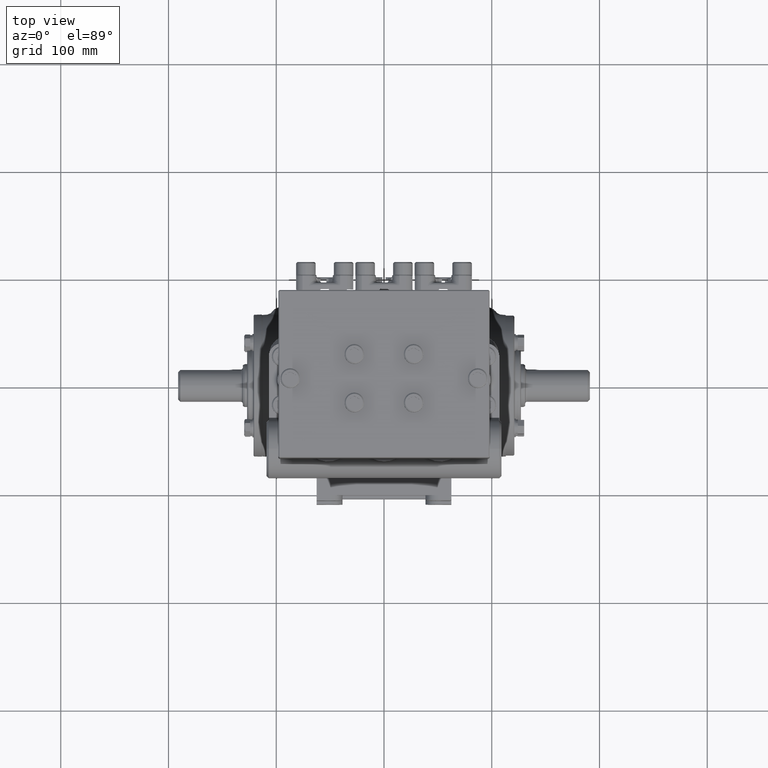
[diagram: clean part render]
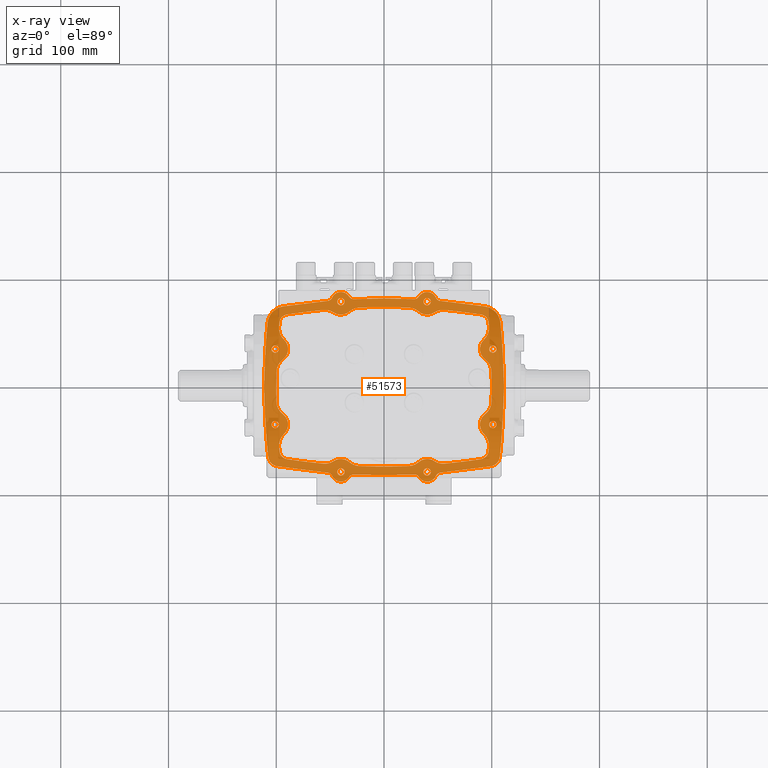
[diagram: x-ray — body ghosted, one internal face saturated and labeled with its STEP entity id]
A machine part, top view, then the same camera in x-ray: the body is ghosted and one INTERNAL B-rep face — a face not visible from any outside direction — is saturated and labeled: STEP entity #51573.
In plain terms, the highlighted planar face has unit normal (0, 0, 1).
Its self-contained STEP definition (entity closure, byte-faithful):
#39 = CARTESIAN_POINT ( 'NONE',  ( 1.949939764655396424, -3.184155259815480754, -2.677165354330709679 ) ) ;
#84 = CIRCLE ( 'NONE', #15133, 0.3543307086614170820 ) ;
#99 = VERTEX_POINT ( 'NONE', #21356 ) ;
#149 = CARTESIAN_POINT ( 'NONE',  ( -3.275618926153061050, 3.000403615539101843, -2.677165354330710123 ) ) ;
#530 = DIRECTION ( 'NONE',  ( 1.000000000000000000, 0.000000000000000000, 0.000000000000000000 ) ) ;
#532 = ORIENTED_EDGE ( 'NONE', *, *, #69856, .T. ) ;
#684 = CARTESIAN_POINT ( 'NONE',  ( -2.061199718059960606, -3.138240205909955449, -2.677165354330706570 ) ) ;
#733 = VERTEX_POINT ( 'NONE', #75861 ) ;
#770 = ORIENTED_EDGE ( 'NONE', *, *, #5018, .F. ) ;
#818 = CARTESIAN_POINT ( 'NONE',  ( -0.8799574373186446197, -2.305785043569838155, -2.677165354330064417 ) ) ;
#879 = CIRCLE ( 'NONE', #91393, 0.1338582677165354451 ) ;
#1065 = CARTESIAN_POINT ( 'NONE',  ( 1.252395038335502697, 3.268040506734201323, -2.677165354330709679 ) ) ;
#1186 = EDGE_CURVE ( 'NONE', #10175, #34361, #23771, .T. ) ;
#1201 = CARTESIAN_POINT ( 'NONE',  ( -3.139645971332099883, -3.022356532156543985, -2.677165354330707903 ) ) ;
#1470 = CARTESIAN_POINT ( 'NONE',  ( 3.987251433200213580, -2.882622144544663811, -2.677165354330708347 ) ) ;
#1498 = CARTESIAN_POINT ( 'NONE',  ( -4.253569493975589033, 2.343245490963142164, -2.677165354330708791 ) ) ;
#1554 = DIRECTION ( 'NONE',  ( 0.000000000000000000, 0.000000000000000000, 1.000000000000000000 ) ) ;
#1569 = CARTESIAN_POINT ( 'NONE',  ( 3.976377952755905998, 1.377952755905512028, -2.677165354330708791 ) ) ;
#1673 = ORIENTED_EDGE ( 'NONE', *, *, #26220, .T. ) ;
#1782 = DIRECTION ( 'NONE',  ( 1.000000000000000000, 0.000000000000000000, 0.000000000000000000 ) ) ;
#1805 = CARTESIAN_POINT ( 'NONE',  ( 0.7314346345182247688, 3.219864016129887485, -2.677165354330708791 ) ) ;
#1826 = EDGE_CURVE ( 'NONE', #17443, #81971, #83958, .T. ) ;
#1967 = EDGE_CURVE ( 'NONE', #62587, #733, #85631, .T. ) ;
#1973 = CARTESIAN_POINT ( 'NONE',  ( 4.043926867460768015, -2.852401266874054819, -2.677165354330709679 ) ) ;
#2081 = AXIS2_PLACEMENT_3D ( 'NONE', #57963, #82107, #66358 ) ;
#2140 = CARTESIAN_POINT ( 'NONE',  ( -1.574803149606299302, -3.110236220472441637, -2.677165354330708791 ) ) ;
#2227 = EDGE_CURVE ( 'NONE', #78092, #39135, #67435, .T. ) ;
#2387 = AXIS2_PLACEMENT_3D ( 'NONE', #69623, #29229, #93227 ) ;
#2491 = CARTESIAN_POINT ( 'NONE',  ( 4.159951258686383824, -2.744451162685177970, -2.677165354330708791 ) ) ;
#2572 = CARTESIAN_POINT ( 'NONE',  ( -2.212172391077217082, 2.808165080513630230, -2.677165354330708791 ) ) ;
#2751 = EDGE_CURVE ( 'NONE', #77628, #15138, #3625, .T. ) ;
#2866 = CARTESIAN_POINT ( 'NONE',  ( -1.993868426462481080, -3.155705766677491031, -2.677165354330708791 ) ) ;
#2900 = ORIENTED_EDGE ( 'NONE', *, *, #102558, .T. ) ;
#2987 = EDGE_CURVE ( 'NONE', #4007, #62317, #55646, .T. ) ;
#3052 = EDGE_CURVE ( 'NONE', #50332, #5349, #54062, .T. ) ;
#3183 = EDGE_CURVE ( 'NONE', #31736, #54767, #7148, .T. ) ;
#3187 = ORIENTED_EDGE ( 'NONE', *, *, #100473, .F. ) ;
#3256 = ORIENTED_EDGE ( 'NONE', *, *, #29396, .T. ) ;
#3413 = CARTESIAN_POINT ( 'NONE',  ( 2.043696178253917584, 3.140372835683941766, -2.677165354330710123 ) ) ;
#3450 = CARTESIAN_POINT ( 'NONE',  ( 3.421664111985500689, 2.980824678331758903, -2.677165354330708791 ) ) ;
#3518 = DIRECTION ( 'NONE',  ( -0.000000000000000000, -0.000000000000000000, -1.000000000000000000 ) ) ;
#3625 = CIRCLE ( 'NONE', #2081, 0.5905511811023621549 ) ;
#3722 = CARTESIAN_POINT ( 'NONE',  ( -4.243250538906970348, 2.416056662300773095, -2.677165354330708791 ) ) ;
#3775 = AXIS2_PLACEMENT_3D ( 'NONE', #24369, #73194, #56365 ) ;
#4007 = VERTEX_POINT ( 'NONE', #50644 ) ;
#4095 = CIRCLE ( 'NONE', #2387, 0.3543307086614170820 ) ;
#4199 = ORIENTED_EDGE ( 'NONE', *, *, #67675, .F. ) ;
#4249 = CARTESIAN_POINT ( 'NONE',  ( -3.551055939617967727, 2.641278877323043783, -2.677165354330708791 ) ) ;
#4250 = CARTESIAN_POINT ( 'NONE',  ( 0.3874714434721882039, -3.225393750894484324, -2.677165354330706570 ) ) ;
#4497 = CARTESIAN_POINT ( 'NONE',  ( 3.816391068290566402, 2.362077920744277026, -2.677165354330708791 ) ) ;
#4538 = CARTESIAN_POINT ( 'NONE',  ( 0.000000000000000000, 20.39370078740157766, -2.677165354330708791 ) ) ;
#4635 = DIRECTION ( 'NONE',  ( 1.000000000000000000, 0.000000000000000000, 0.000000000000000000 ) ) ;
#4750 = CARTESIAN_POINT ( 'NONE',  ( -3.764309045630218620, 2.923514365447537955, -2.677165354330708791 ) ) ;
#4779 = EDGE_CURVE ( 'NONE', #49135, #7261, #88287, .T. ) ;
#4818 = CARTESIAN_POINT ( 'NONE',  ( 4.385081783760784724, -0.1115811727395289721, -2.677165354330709679 ) ) ;
#4934 = ORIENTED_EDGE ( 'NONE', *, *, #47961, .T. ) ;
#5011 = DIRECTION ( 'NONE',  ( 0.000000000000000000, 0.000000000000000000, -1.000000000000000000 ) ) ;
#5012 = CARTESIAN_POINT ( 'NONE',  ( -3.503068697190699687, -2.329995368340283868, -2.677165354330064417 ) ) ;
#5018 = EDGE_CURVE ( 'NONE', #94238, #98330, #33514, .T. ) ;
#5158 = CARTESIAN_POINT ( 'NONE',  ( -3.244094534296815269, -2.148480662573653444, -2.677165354330064417 ) ) ;
#5202 = VERTEX_POINT ( 'NONE', #24106 ) ;
#5349 = VERTEX_POINT ( 'NONE', #100098 ) ;
#5524 = CARTESIAN_POINT ( 'NONE',  ( -3.340328405106575360, 0.5262525546376961572, -2.677165354330064417 ) ) ;
#5557 = CIRCLE ( 'NONE', #20656, 23.30708661417323313 ) ;
#5634 = VERTEX_POINT ( 'NONE', #89031 ) ;
#5815 = CARTESIAN_POINT ( 'NONE',  ( -0.9028332805764945901, -2.895892994115021324, -2.677165354330708791 ) ) ;
#5817 = CARTESIAN_POINT ( 'NONE',  ( -3.551055939617969948, -2.641278877323048224, -2.677165354330708791 ) ) ;
#5853 = CARTESIAN_POINT ( 'NONE',  ( 4.362217526843128468, 0.6119154915524274152, -2.677165354330709679 ) ) ;
#5860 = EDGE_CURVE ( 'NONE', #47058, #100083, #52287, .T. ) ;
#5981 = AXIS2_PLACEMENT_3D ( 'NONE', #36329, #90412, #68322 ) ;
#6138 = FACE_BOUND ( 'NONE', #62611, .T. ) ;
#6265 = CIRCLE ( 'NONE', #24760, 0.5905511811023621549 ) ;
#6300 = DIRECTION ( 'NONE',  ( -1.000000000000000000, 0.000000000000000000, 0.000000000000000000 ) ) ;
#6303 = CARTESIAN_POINT ( 'NONE',  ( 0.06617813543257809739, -3.228346456692905431, -2.677165354330708791 ) ) ;
#6605 = DIRECTION ( 'NONE',  ( 1.000000000000000000, 0.000000000000000000, 0.000000000000000000 ) ) ;
#6644 = VERTEX_POINT ( 'NONE', #32464 ) ;
#6718 = EDGE_CURVE ( 'NONE', #37328, #9477, #62500, .T. ) ;
#7118 = CARTESIAN_POINT ( 'NONE',  ( -4.364826717232280551, -0.5563727655865502442, -2.677165354330708791 ) ) ;
#7148 = CIRCLE ( 'NONE', #94304, 0.5905511811023621549 ) ;
#7261 = VERTEX_POINT ( 'NONE', #19649 ) ;
#7310 = ORIENTED_EDGE ( 'NONE', *, *, #27593, .F. ) ;
#7412 = VERTEX_POINT ( 'NONE', #62146 ) ;
#7608 = CARTESIAN_POINT ( 'NONE',  ( 1.205317418216490077, -3.229558433750448820, -2.677165354330708347 ) ) ;
#7629 = CARTESIAN_POINT ( 'NONE',  ( 3.831970746097348890, -2.204625627623510553, -2.677165354330708791 ) ) ;
#7714 = FACE_OUTER_BOUND ( 'NONE', #9040, .T. ) ;
#7763 = EDGE_CURVE ( 'NONE', #99227, #15138, #79380, .T. ) ;
#7831 = CARTESIAN_POINT ( 'NONE',  ( -3.816391068290566402, -2.362077920744281467, -2.677165354330708791 ) ) ;
#7883 = CARTESIAN_POINT ( 'NONE',  ( 1.246453316961204649, 3.261698370568864025, -2.677165354330709679 ) ) ;
#8000 = CARTESIAN_POINT ( 'NONE',  ( -4.111270692668326454, -2.801008144586238480, -2.677165354330708791 ) ) ;
#8070 = AXIS2_PLACEMENT_3D ( 'NONE', #39489, #23201, #55188 ) ;
#8168 = B_SPLINE_CURVE_WITH_KNOTS ( 'NONE', 3,
 ( #21058, #53058, #3722, #13663, #45200, #20531, #37868, #84562, #101841, #37346, #61975, #45722, #12635, #76705, #69859, #19492, #51501, #11595, #44685, #35793, #67787, #4750, #79284, #71420 ),
 .UNSPECIFIED., .F., .F.,
 ( 4, 2, 2, 2, 2, 2, 2, 2, 2, 2, 2, 4 ),
 ( 0.000000000000000000, 0.002779170562206471125, 0.005558341124412942251, 0.006947926405516196245, 0.008337511686619449372, 0.01111668224882599205, 0.01250626752992927901, 0.01389585281103256770, 0.01667502337323913120, 0.01806460865434241295, 0.01945419393544569817, 0.02223336449765226167 ),
 .UNSPECIFIED. ) ;
#8175 = DIRECTION ( 'NONE',  ( 0.000000000000000000, 0.000000000000000000, 1.000000000000000000 ) ) ;
#8186 = CIRCLE ( 'NONE', #45080, 0.3149606299212601157 ) ;
#8188 = CARTESIAN_POINT ( 'NONE',  ( 1.708661417322834719, 3.110236220472441637, -2.677165354330710123 ) ) ;
#8252 = DIRECTION ( 'NONE',  ( -0.000000000000000000, -0.000000000000000000, -1.000000000000000000 ) ) ;
#8272 = ORIENTED_EDGE ( 'NONE', *, *, #21553, .T. ) ;
#8274 = CARTESIAN_POINT ( 'NONE',  ( -1.165547811499097586, 3.211208234926767435, -2.677165354330708791 ) ) ;
#8599 = CARTESIAN_POINT ( 'NONE',  ( -1.096487013929023480, -3.202891759217791900, -2.677165354330703462 ) ) ;
#8663 = CARTESIAN_POINT ( 'NONE',  ( 3.668437111325606015, -2.942071359179118328, -2.677165354330714564 ) ) ;
#8696 = EDGE_CURVE ( 'NONE', #98969, #85515, #35927, .T. ) ;
#8723 = CARTESIAN_POINT ( 'NONE',  ( -3.904881078928923888, -2.903359558785584049, -2.677165354330708347 ) ) ;
#8747 = B_SPLINE_CURVE_WITH_KNOTS ( 'NONE', 3,
 ( #60973, #55657, #33628, #16288, #9457, #40462, #72490, #48834, #64074, #7883, #1065, #87696, #80856, #89768 ),
 .UNSPECIFIED., .F., .F.,
 ( 4, 2, 2, 2, 2, 2, 4 ),
 ( 0.000000000000000000, 0.001324153032375395122, 0.001986229548563092466, 0.002648306064750790244, 0.003972459097126204014, 0.004634535613313897455, 0.005296612129501590896 ),
 .UNSPECIFIED. ) ;
#8989 = AXIS2_PLACEMENT_3D ( 'NONE', #50739, #5011, #29211 ) ;
#9040 = EDGE_LOOP ( 'NONE', ( #770, #56349, #42454, #50087, #21634, #55572, #82832, #40141, #36407, #34190, #82423, #81059, #4934, #9413, #35676, #53417, #82329, #2900, #31850, #33544, #61437, #102208, #103882, #23065, #32919, #33774, #48125, #103699, #56746, #532 ) ) ;
#9058 = CARTESIAN_POINT ( 'NONE',  ( -4.205717574627442445, -2.660747878358769913, -2.677165354330708791 ) ) ;
#9339 = CARTESIAN_POINT ( 'NONE',  ( 4.140344115036822537, -2.769602686426189564, -2.677165354330708791 ) ) ;
#9413 = ORIENTED_EDGE ( 'NONE', *, *, #57769, .T. ) ;
#9457 = CARTESIAN_POINT ( 'NONE',  ( 1.165479646352360454, 3.211788076921711088, -2.677165354330709679 ) ) ;
#9477 = VERTEX_POINT ( 'NONE', #83758 ) ;
#9537 = B_SPLINE_CURVE_WITH_KNOTS ( 'NONE', 3,
 ( #88327, #23787, #9566, #72610, #57347, #24821, #8000, #80979, #57871, #88843, #49983, #32193, #56826, #81493, #9058, #97246, #79936, #89364, #40058, #17455 ),
 .UNSPECIFIED., .F., .F.,
 ( 4, 2, 2, 2, 2, 2, 2, 2, 2, 4 ),
 ( 0.000000000000000000, 0.003223675111040631616, 0.004835512666560919451, 0.006447350222081206852, 0.007253268999841349686, 0.008059187777601494254, 0.009671025333121759104, 0.01047694411088188893, 0.01128286288864202222, 0.01289470044416228534 ),
 .UNSPECIFIED. ) ;
#9566 = CARTESIAN_POINT ( 'NONE',  ( -3.987251433200213580, -2.882622144544663811, -2.677165354330708347 ) ) ;
#9602 = EDGE_LOOP ( 'NONE', ( #7310, #15177 ) ) ;
#9649 = DIRECTION ( 'NONE',  ( -1.000000000000000000, 0.000000000000000000, 0.000000000000000000 ) ) ;
#10058 = DIRECTION ( 'NONE',  ( -1.000000000000000000, 0.000000000000000000, 0.000000000000000000 ) ) ;
#10175 = VERTEX_POINT ( 'NONE', #56682 ) ;
#10288 = VERTEX_POINT ( 'NONE', #58740 ) ;
#10532 = CARTESIAN_POINT ( 'NONE',  ( -1.440944881889763884, 3.110236220472441637, -2.677165354330710123 ) ) ;
#10596 = CIRCLE ( 'NONE', #24029, 0.4724409448818896462 ) ;
#10667 = CIRCLE ( 'NONE', #30763, 0.1338582677165354451 ) ;
#10911 = DIRECTION ( 'NONE',  ( 0.000000000000000000, 0.000000000000000000, 1.000000000000000000 ) ) ;
#10950 = CARTESIAN_POINT ( 'NONE',  ( 3.650918655662977130, 1.720409603313574953, -2.677165354330708791 ) ) ;
#11123 = CARTESIAN_POINT ( 'NONE',  ( -3.904881078928923888, -2.903359558785584049, -2.677165354330708347 ) ) ;
#11289 = CARTESIAN_POINT ( 'NONE',  ( 1.914814492306800897, 3.223420610821423615, -2.677165354330708347 ) ) ;
#11366 = AXIS2_PLACEMENT_3D ( 'NONE', #57726, #1554, #26746 ) ;
#11374 = VERTEX_POINT ( 'NONE', #52942 ) ;
#11383 = DIRECTION ( 'NONE',  ( 1.000000000000000000, 0.000000000000000000, 0.000000000000000000 ) ) ;
#11595 = CARTESIAN_POINT ( 'NONE',  ( -3.884019239640944310, 2.877276867945248284, -2.677165354330709679 ) ) ;
#11655 = CARTESIAN_POINT ( 'NONE',  ( 4.360642272582797574, -0.6676288780547646740, -2.677165354330708791 ) ) ;
#11835 = CARTESIAN_POINT ( 'NONE',  ( 2.063249193625729561, 3.138060618916742150, -2.677165354330709679 ) ) ;
#11847 = DIRECTION ( 'NONE',  ( -0.000000000000000000, -0.000000000000000000, -1.000000000000000000 ) ) ;
#11871 = CIRCLE ( 'NONE', #45419, 0.1338582677165354451 ) ;
#11960 = DIRECTION ( 'NONE',  ( 1.000000000000000000, 0.000000000000000000, 0.000000000000000000 ) ) ;
#12008 = CARTESIAN_POINT ( 'NONE',  ( -0.3659347578927398259, -3.228345806563244214, -2.677165354330708791 ) ) ;
#12171 = DIRECTION ( 'NONE',  ( 0.000000000000000000, 0.000000000000000000, 1.000000000000000000 ) ) ;
#12635 = CARTESIAN_POINT ( 'NONE',  ( -4.048564764854240217, 2.762482673505735065, -2.677165354330708347 ) ) ;
#12733 = EDGE_CURVE ( 'NONE', #86198, #103737, #9537, .T. ) ;
#12752 = VERTEX_POINT ( 'NONE', #41102 ) ;
#12795 = CARTESIAN_POINT ( 'NONE',  ( 4.253569493975589033, 2.343245490963142164, -2.677165354330708791 ) ) ;
#12823 = VERTEX_POINT ( 'NONE', #87813 ) ;
#13223 = VERTEX_POINT ( 'NONE', #23012 ) ;
#13228 = ORIENTED_EDGE ( 'NONE', *, *, #68997, .F. ) ;
#13290 = CARTESIAN_POINT ( 'NONE',  ( -1.265982833034011268, 2.752702364071281771, -2.677165354330708791 ) ) ;
#13311 = CARTESIAN_POINT ( 'NONE',  ( 4.153098893803450764, 2.635319146645388244, -2.677165354330708791 ) ) ;
#13345 = CIRCLE ( 'NONE', #30178, 0.3543307086614170820 ) ;
#13506 = PLANE ( 'NONE',  #84405 ) ;
#13663 = CARTESIAN_POINT ( 'NONE',  ( -4.224244714651112176, 2.486481991344426490, -2.677165354330708791 ) ) ;
#13731 = CARTESIAN_POINT ( 'NONE',  ( 4.386010762275016184, 0.05532273756505636658, -2.677165354330709679 ) ) ;
#13754 = AXIS2_PLACEMENT_3D ( 'NONE', #66712, #89832, #97710 ) ;
#14357 = ORIENTED_EDGE ( 'NONE', *, *, #63574, .T. ) ;
#14564 = CARTESIAN_POINT ( 'NONE',  ( 1.273207996798374708, 3.296221743842586260, -2.677165354330708791 ) ) ;
#14578 = CARTESIAN_POINT ( 'NONE',  ( -1.131495818969785017, 3.204183639270991257, -2.677165354330708791 ) ) ;
#14580 = EDGE_CURVE ( 'NONE', #85950, #32624, #44876, .T. ) ;
#14727 = CIRCLE ( 'NONE', #8070, 23.30708661417322958 ) ;
#14914 = EDGE_CURVE ( 'NONE', #29642, #7261, #89282, .T. ) ;
#14973 = CARTESIAN_POINT ( 'NONE',  ( -2.061199718383545765, 3.138240209602607855, -2.677165354330706570 ) ) ;
#15060 = ORIENTED_EDGE ( 'NONE', *, *, #39317, .T. ) ;
#15094 = CARTESIAN_POINT ( 'NONE',  ( -1.114118591505349087, 3.202660874177137629, -2.677165354330709679 ) ) ;
#15133 = AXIS2_PLACEMENT_3D ( 'NONE', #97132, #47801, #79825 ) ;
#15138 = VERTEX_POINT ( 'NONE', #85782 ) ;
#15177 = ORIENTED_EDGE ( 'NONE', *, *, #33389, .F. ) ;
#15274 = CARTESIAN_POINT ( 'NONE',  ( -3.976377952755905998, 1.377952755905512028, -2.677165354330708791 ) ) ;
#15276 = CARTESIAN_POINT ( 'NONE',  ( 1.906226517537999543, -3.238463793116532319, -2.677165354330708791 ) ) ;
#15509 = CARTESIAN_POINT ( 'NONE',  ( -1.898515526134254561, 3.254321432701612782, -2.677165354330708791 ) ) ;
#15525 = CARTESIAN_POINT ( 'NONE',  ( -4.370560789738519247, -0.4451834965656322751, -2.677165354330708791 ) ) ;
#15549 = ORIENTED_EDGE ( 'NONE', *, *, #88944, .T. ) ;
#15643 = EDGE_CURVE ( 'NONE', #31222, #50332, #43496, .T. ) ;
#15764 = EDGE_CURVE ( 'NONE', #17443, #68105, #13345, .T. ) ;
#15912 = CARTESIAN_POINT ( 'NONE',  ( 3.728701128349825478, 2.932234036405120925, -2.677165354330707903 ) ) ;
#15913 = B_SPLINE_CURVE_WITH_KNOTS ( 'NONE', 3,
 ( #75401, #11835, #52251, #59633, #36551, #43885, #34997, #76954, #51231, #91145, #19222, #3450, #44409 ),
 .UNSPECIFIED., .F., .F.,
 ( 4, 2, 1, 1, 1, 1, 1, 1, 1, 4 ),
 ( 0.4990178462784847224, 0.5005097907159181680, 0.5020017351533515582, 0.5049856240282185604, 0.5109534017779521209, 0.5228889572774196859, 0.5467600682763548159, 0.5945022902742251869, 0.6899867342699659289, 0.8809556222614474130 ),
 .UNSPECIFIED. ) ;
#16288 = CARTESIAN_POINT ( 'NONE',  ( 1.156977802848394354, 3.209287038995229047, -2.677165354330708347 ) ) ;
#16434 = CARTESIAN_POINT ( 'NONE',  ( 3.833491432716431113, 2.899685383548999518, -2.677165354330709679 ) ) ;
#16540 = CARTESIAN_POINT ( 'NONE',  ( 1.114118591505348865, -3.202660874177137629, -2.677165354330709679 ) ) ;
#16656 = CARTESIAN_POINT ( 'NONE',  ( -19.25196850393700743, 0.000000000000000000, -2.677165354330708791 ) ) ;
#16679 = CARTESIAN_POINT ( 'NONE',  ( -1.273207996798374708, 3.296221743842586260, -2.677165354330708791 ) ) ;
#16690 = DIRECTION ( 'NONE',  ( 1.000000000000000000, 0.000000000000000000, 0.000000000000000000 ) ) ;
#16863 = DIRECTION ( 'NONE',  ( -0.000000000000000000, -0.000000000000000000, -1.000000000000000000 ) ) ;
#17210 = CARTESIAN_POINT ( 'NONE',  ( -19.25196850393700743, 0.000000000000000000, -2.677165354330708791 ) ) ;
#17443 = VERTEX_POINT ( 'NONE', #54568 ) ;
#17455 = CARTESIAN_POINT ( 'NONE',  ( -4.231207904092825878, -2.557643796853457552, -2.677165354330708791 ) ) ;
#17468 = VERTEX_POINT ( 'NONE', #7831 ) ;
#17470 = CARTESIAN_POINT ( 'NONE',  ( -2.686142218550244376, 3.077002822936139470, -2.677165354330717228 ) ) ;
#17685 = CARTESIAN_POINT ( 'NONE',  ( 19.25196850393700743, 0.000000000000000000, -2.677165354330708791 ) ) ;
#17977 = CARTESIAN_POINT ( 'NONE',  ( -3.670575742688217513, 2.941432259710195840, -2.677165354330713232 ) ) ;
#17979 = CARTESIAN_POINT ( 'NONE',  ( -2.196190758815891986, -3.126077979153398356, -2.677165354330708347 ) ) ;
#18009 = CARTESIAN_POINT ( 'NONE',  ( -1.114095177724025776, -3.202064730301195539, -2.677165354330708791 ) ) ;
#18101 = CARTESIAN_POINT ( 'NONE',  ( 3.057242456681484644, -3.029973251418348390, -2.677165354330711011 ) ) ;
#18159 = EDGE_CURVE ( 'NONE', #90150, #85515, #50300, .T. ) ;
#18179 = ORIENTED_EDGE ( 'NONE', *, *, #3183, .T. ) ;
#18241 = CARTESIAN_POINT ( 'NONE',  ( 4.177741737721201609, -2.718157258777439633, -2.677165354330707903 ) ) ;
#18448 = DIRECTION ( 'NONE',  ( -0.000000000000000000, -0.000000000000000000, -1.000000000000000000 ) ) ;
#18520 = CARTESIAN_POINT ( 'NONE',  ( -1.227395919953965908, -3.243876070022978730, -2.677165354330708791 ) ) ;
#18544 = ORIENTED_EDGE ( 'NONE', *, *, #3052, .T. ) ;
#18583 = VERTEX_POINT ( 'NONE', #2572 ) ;
#18634 = CARTESIAN_POINT ( 'NONE',  ( -2.043696178253917584, -3.140372835683941766, -2.677165354330710123 ) ) ;
#18678 = DIRECTION ( 'NONE',  ( -0.000000000000000000, -0.000000000000000000, -1.000000000000000000 ) ) ;
#18752 = CARTESIAN_POINT ( 'NONE',  ( 4.111270692668326454, -2.801008144586238480, -2.677165354330708791 ) ) ;
#18782 = CARTESIAN_POINT ( 'NONE',  ( 3.244094534296815269, 2.148480662573653444, -2.677165354330064417 ) ) ;
#18796 = EDGE_CURVE ( 'NONE', #100981, #54767, #60487, .T. ) ;
#19040 = AXIS2_PLACEMENT_3D ( 'NONE', #38921, #46265, #45758 ) ;
#19222 = CARTESIAN_POINT ( 'NONE',  ( 3.014902102602879719, 3.037958276516746547, -2.677165354330709679 ) ) ;
#19484 = CIRCLE ( 'NONE', #96693, 0.1338582677165354451 ) ;
#19492 = CARTESIAN_POINT ( 'NONE',  ( -3.963653701226707682, 2.831765619799752720, -2.677165354330708347 ) ) ;
#19511 = CARTESIAN_POINT ( 'NONE',  ( -2.331254629203058037, -3.113240951545977353, -2.677165354330707903 ) ) ;
#19649 = CARTESIAN_POINT ( 'NONE',  ( -4.360642272582797574, 0.6676288780547947610, -2.677165354330708791 ) ) ;
#19936 = CARTESIAN_POINT ( 'NONE',  ( -1.045015825840551305, 3.205274583350976147, -2.677165354330699021 ) ) ;
#20265 = DIRECTION ( 'NONE',  ( 1.000000000000000000, 0.000000000000000000, 0.000000000000000000 ) ) ;
#20531 = CARTESIAN_POINT ( 'NONE',  ( -4.188903174282612163, 2.571332044065640865, -2.677165354330708347 ) ) ;
#20656 = AXIS2_PLACEMENT_3D ( 'NONE', #40935, #90228, #89721 ) ;
#20739 = VERTEX_POINT ( 'NONE', #78598 ) ;
#21058 = CARTESIAN_POINT ( 'NONE',  ( -4.253569493975589033, 2.343245490963142164, -2.677165354330708791 ) ) ;
#21097 = CARTESIAN_POINT ( 'NONE',  ( 19.25196850393700743, 0.000000000000000000, -2.677165354330708791 ) ) ;
#21222 = CARTESIAN_POINT ( 'NONE',  ( 4.162665113122457683, 2.619762348492230331, -2.677165354330708791 ) ) ;
#21356 = CARTESIAN_POINT ( 'NONE',  ( 2.061199718059959718, -3.138240205909955449, -2.677165354330706570 ) ) ;
#21400 = CIRCLE ( 'NONE', #86738, 0.3149606299212601157 ) ;
#21553 = EDGE_CURVE ( 'NONE', #5202, #20739, #23575, .T. ) ;
#21634 = ORIENTED_EDGE ( 'NONE', *, *, #1826, .T. ) ;
#21886 = EDGE_CURVE ( 'NONE', #13223, #102149, #77217, .T. ) ;
#21934 = EDGE_CURVE ( 'NONE', #81971, #11374, #15913, .T. ) ;
#22004 = DIRECTION ( 'NONE',  ( 0.000000000000000000, 0.000000000000000000, 1.000000000000000000 ) ) ;
#22083 = CARTESIAN_POINT ( 'NONE',  ( -3.693689264911758308, -0.9994193331198258923, -2.677165354330708791 ) ) ;
#22214 = CARTESIAN_POINT ( 'NONE',  ( -3.842519685039370358, -1.377952755905512028, -2.677165354330708791 ) ) ;
#22456 = FACE_BOUND ( 'NONE', #72926, .T. ) ;
#22665 = VERTEX_POINT ( 'NONE', #22214 ) ;
#22678 = CARTESIAN_POINT ( 'NONE',  ( 4.381729332597306126, 0.2223107511646950640, -2.677165354330709679 ) ) ;
#22768 = CARTESIAN_POINT ( 'NONE',  ( 4.122564705633111615, 2.680719139743128476, -2.677165354330708791 ) ) ;
#22865 = CARTESIAN_POINT ( 'NONE',  ( 1.212720440528380905, -3.234120222709017778, -2.677165354330707903 ) ) ;
#22873 = DIRECTION ( 'NONE',  ( 1.000000000000000000, 0.000000000000000000, 0.000000000000000000 ) ) ;
#22909 = CARTESIAN_POINT ( 'NONE',  ( 1.833166516786949973, -2.714700107203413815, -2.677165354330708791 ) ) ;
#22966 = DIRECTION ( 'NONE',  ( -1.000000000000000000, 0.000000000000000000, 0.000000000000000000 ) ) ;
#23012 = CARTESIAN_POINT ( 'NONE',  ( 3.551055939617969948, -2.641278877323048224, -2.677165354330708791 ) ) ;
#23065 = ORIENTED_EDGE ( 'NONE', *, *, #14914, .T. ) ;
#23173 = CARTESIAN_POINT ( 'NONE',  ( 1.920424469704827164, -3.216538007343808570, -2.677165354330709679 ) ) ;
#23201 = DIRECTION ( 'NONE',  ( 0.000000000000000000, -0.000000000000000000, 1.000000000000000000 ) ) ;
#23259 = VERTEX_POINT ( 'NONE', #52024 ) ;
#23407 = CARTESIAN_POINT ( 'NONE',  ( -2.026677587910261646, 3.143600156200988760, -2.677165354330708791 ) ) ;
#23493 = CARTESIAN_POINT ( 'NONE',  ( -3.842519685039370358, 1.377952755905512028, -2.677165354330708791 ) ) ;
#23575 = CIRCLE ( 'NONE', #42010, 0.1338582677165354451 ) ;
#23600 = CARTESIAN_POINT ( 'NONE',  ( -2.212172391077225075, -2.808165080513630230, -2.677165354330708791 ) ) ;
#23612 = EDGE_CURVE ( 'NONE', #98969, #85177, #42716, .T. ) ;
#23628 = ORIENTED_EDGE ( 'NONE', *, *, #64066, .T. ) ;
#23771 = CIRCLE ( 'NONE', #37189, 0.1338582677165354451 ) ;
#23787 = CARTESIAN_POINT ( 'NONE',  ( -3.947205177083657368, -2.896264798309485133, -2.677165354330708791 ) ) ;
#23865 = VERTEX_POINT ( 'NONE', #42780 ) ;
#23881 = AXIS2_PLACEMENT_3D ( 'NONE', #90890, #34237, #10058 ) ;
#23931 = CARTESIAN_POINT ( 'NONE',  ( -1.978567302928215810, 3.164446986446290744, -2.677165354330708347 ) ) ;
#24029 = AXIS2_PLACEMENT_3D ( 'NONE', #1569, #72474, #530 ) ;
#24083 = ORIENTED_EDGE ( 'NONE', *, *, #67865, .T. ) ;
#24106 = CARTESIAN_POINT ( 'NONE',  ( 1.708661417322834719, -3.110236220472441637, -2.677165354330708791 ) ) ;
#24151 = EDGE_CURVE ( 'NONE', #87091, #86198, #83192, .T. ) ;
#24348 = CARTESIAN_POINT ( 'NONE',  ( 2.061199718383548873, 3.138240209602606967, -2.677165354330706570 ) ) ;
#24369 = CARTESIAN_POINT ( 'NONE',  ( 1.574803149606298636, -3.110236220472441193, -2.677165354330708791 ) ) ;
#24383 = ORIENTED_EDGE ( 'NONE', *, *, #58315, .F. ) ;
#24468 = CARTESIAN_POINT ( 'NONE',  ( -4.362215746866286992, -0.6119784455403110002, -2.677165354330703018 ) ) ;
#24616 = EDGE_CURVE ( 'NONE', #92522, #87091, #65681, .T. ) ;
#24730 = CARTESIAN_POINT ( 'NONE',  ( 2.002105250036126272, -3.152658319598346193, -2.677165354330708347 ) ) ;
#24760 = AXIS2_PLACEMENT_3D ( 'NONE', #92210, #83820, #11383 ) ;
#24767 = ORIENTED_EDGE ( 'NONE', *, *, #98657, .T. ) ;
#24801 = CARTESIAN_POINT ( 'NONE',  ( -1.574803149606299302, 3.110236220472441637, -2.677165354330710123 ) ) ;
#24821 = CARTESIAN_POINT ( 'NONE',  ( -4.095508904394439931, -2.815172095204765412, -2.677165354330708791 ) ) ;
#24848 = CARTESIAN_POINT ( 'NONE',  ( 4.061809365068802080, 2.749558043678542951, -2.677165354330708791 ) ) ;
#25435 = DIRECTION ( 'NONE',  ( -0.000000000000000000, -0.000000000000000000, -1.000000000000000000 ) ) ;
#25460 = CARTESIAN_POINT ( 'NONE',  ( 1.096487025546056149, 3.202892009370205795, -2.677165354330703462 ) ) ;
#25490 = CARTESIAN_POINT ( 'NONE',  ( 2.061199718059959718, -3.138240205909955449, -2.677165354330706570 ) ) ;
#25578 = AXIS2_PLACEMENT_3D ( 'NONE', #24801, #73633, #47899 ) ;
#25639 = CARTESIAN_POINT ( 'NONE',  ( -19.25196850393700743, 0.000000000000000000, -2.677165354330708791 ) ) ;
#25756 = EDGE_CURVE ( 'NONE', #97263, #85950, #78909, .T. ) ;
#25840 = AXIS2_PLACEMENT_3D ( 'NONE', #18782, #10911, #90705 ) ;
#25899 = AXIS2_PLACEMENT_3D ( 'NONE', #35843, #44733, #61004 ) ;
#26134 = EDGE_CURVE ( 'NONE', #37339, #51555, #11871, .T. ) ;
#26149 = CARTESIAN_POINT ( 'NONE',  ( 4.201599559366224312, -2.670691265845889006, -2.677165354330710123 ) ) ;
#26220 = EDGE_CURVE ( 'NONE', #39135, #78092, #33742, .T. ) ;
#26624 = CARTESIAN_POINT ( 'NONE',  ( -1.265982833034007937, -2.752702364071284435, -2.677165354330708791 ) ) ;
#26657 = CARTESIAN_POINT ( 'NONE',  ( 4.061875371109850086, -2.840848321731201942, -2.677165354330708791 ) ) ;
#26668 = DIRECTION ( 'NONE',  ( -0.000000000000000000, -0.000000000000000000, 1.000000000000000000 ) ) ;
#26676 = DIRECTION ( 'NONE',  ( -0.000000000000000000, 0.000000000000000000, 1.000000000000000000 ) ) ;
#26746 = DIRECTION ( 'NONE',  ( 1.000000000000000000, 0.000000000000000000, 0.000000000000000000 ) ) ;
#26841 = DIRECTION ( 'NONE',  ( -0.000000000000000000, -0.000000000000000000, -1.000000000000000000 ) ) ;
#27010 = CARTESIAN_POINT ( 'NONE',  ( -1.440944881889763884, -3.110236220472441637, -2.677165354330708791 ) ) ;
#27056 = CARTESIAN_POINT ( 'NONE',  ( -1.956903640578942394, -3.179197719821591051, -2.677165354330708347 ) ) ;
#27169 = CARTESIAN_POINT ( 'NONE',  ( 4.095508904394439931, -2.815172095204765412, -2.677165354330708791 ) ) ;
#27593 = EDGE_CURVE ( 'NONE', #78329, #60460, #69093, .T. ) ;
#27662 = CARTESIAN_POINT ( 'NONE',  ( -1.898515526134254561, 3.254321432701612782, -2.677165354330708791 ) ) ;
#27842 = CARTESIAN_POINT ( 'NONE',  ( -0.8606189864673066126, 3.213234387299024331, -2.677165354330704350 ) ) ;
#27930 = EDGE_LOOP ( 'NONE', ( #69844, #13228 ) ) ;
#27962 = CARTESIAN_POINT ( 'NONE',  ( -1.212880615505754545, -3.233542543544807302, -2.677165354330709679 ) ) ;
#28266 = AXIS2_PLACEMENT_3D ( 'NONE', #60814, #37730, #76055 ) ;
#28390 = CARTESIAN_POINT ( 'NONE',  ( -19.25196850393700743, 0.000000000000000000, -2.677165354330708791 ) ) ;
#28571 = DIRECTION ( 'NONE',  ( 0.000000000000000000, 0.000000000000000000, -1.000000000000000000 ) ) ;
#29009 = AXIS2_PLACEMENT_3D ( 'NONE', #60528, #52647, #84669 ) ;
#29138 = CARTESIAN_POINT ( 'NONE',  ( 3.650918655662981127, -1.720409603313579172, -2.677165354330708791 ) ) ;
#29211 = DIRECTION ( 'NONE',  ( -1.000000000000000000, 0.000000000000000000, 0.000000000000000000 ) ) ;
#29229 = DIRECTION ( 'NONE',  ( 0.000000000000000000, -0.000000000000000000, 1.000000000000000000 ) ) ;
#29255 = CARTESIAN_POINT ( 'NONE',  ( 1.574803149606299302, 3.110236220472441637, -2.677165354330708791 ) ) ;
#29312 = FACE_BOUND ( 'NONE', #58287, .T. ) ;
#29355 = EDGE_CURVE ( 'NONE', #62317, #53435, #82717, .T. ) ;
#29382 = EDGE_CURVE ( 'NONE', #53435, #23259, #64291, .T. ) ;
#29396 = EDGE_CURVE ( 'NONE', #100981, #101668, #91106, .T. ) ;
#29569 = VERTEX_POINT ( 'NONE', #78509 ) ;
#29642 = VERTEX_POINT ( 'NONE', #65885 ) ;
#29744 = CARTESIAN_POINT ( 'NONE',  ( -1.906226517537999543, 3.238463793116531875, -2.677165354330709679 ) ) ;
#29994 = CARTESIAN_POINT ( 'NONE',  ( 8.195543980992789655E-16, -3.228346456692913424, -2.677165354330708791 ) ) ;
#30018 = DIRECTION ( 'NONE',  ( -0.000000000000000000, -0.000000000000000000, 1.000000000000000000 ) ) ;
#30178 = AXIS2_PLACEMENT_3D ( 'NONE', #29255, #86937, #6605 ) ;
#30256 = CARTESIAN_POINT ( 'NONE',  ( -1.902099476786027976, 3.246269467028698230, -2.677165354330708791 ) ) ;
#30419 = EDGE_CURVE ( 'NONE', #7412, #73724, #74921, .T. ) ;
#30560 = CARTESIAN_POINT ( 'NONE',  ( 4.370560789738519247, -0.4451834965656322751, -2.677165354330708791 ) ) ;
#30571 = CARTESIAN_POINT ( 'NONE',  ( 1.931372362363415585, 3.203130647135191023, -2.677165354330708791 ) ) ;
#30595 = DIRECTION ( 'NONE',  ( 0.000000000000000000, 0.000000000000000000, 1.000000000000000000 ) ) ;
#30747 = CARTESIAN_POINT ( 'NONE',  ( 1.263955414394703602, -3.281217705069368051, -2.677165354330710123 ) ) ;
#30763 = AXIS2_PLACEMENT_3D ( 'NONE', #33533, #26676, #81795 ) ;
#30887 = CARTESIAN_POINT ( 'NONE',  ( -1.205317418216489855, 3.229558433750449264, -2.677165354330708791 ) ) ;
#31060 = CARTESIAN_POINT ( 'NONE',  ( 1.971170029831987414, -3.169017697913615095, -2.677165354330708791 ) ) ;
#31092 = DIRECTION ( 'NONE',  ( -1.000000000000000000, 0.000000000000000000, 0.000000000000000000 ) ) ;
#31118 = DIRECTION ( 'NONE',  ( 1.000000000000000000, 0.000000000000000000, 0.000000000000000000 ) ) ;
#31178 = CARTESIAN_POINT ( 'NONE',  ( 3.693689264911758308, 0.9994193331198258923, -2.677165354330708791 ) ) ;
#31222 = VERTEX_POINT ( 'NONE', #5815 ) ;
#31290 = CARTESIAN_POINT ( 'NONE',  ( -2.002105250036126716, 3.152658319598347525, -2.677165354330708791 ) ) ;
#31302 = CARTESIAN_POINT ( 'NONE',  ( -4.381729332597306126, 0.2223107511646950640, -2.677165354330709679 ) ) ;
#31543 = DIRECTION ( 'NONE',  ( -0.000000000000000000, -0.000000000000000000, -1.000000000000000000 ) ) ;
#31579 = CARTESIAN_POINT ( 'NONE',  ( 1.994013319754524671, -3.156271316915621128, -2.677165354330708347 ) ) ;
#31615 = CARTESIAN_POINT ( 'NONE',  ( 19.25196850393700743, 0.000000000000000000, -2.677165354330708791 ) ) ;
#31696 = CARTESIAN_POINT ( 'NONE',  ( 3.963653701226707682, 2.831765619799752720, -2.677165354330708347 ) ) ;
#31736 = VERTEX_POINT ( 'NONE', #35444 ) ;
#31753 = VERTEX_POINT ( 'NONE', #44858 ) ;
#31826 = CARTESIAN_POINT ( 'NONE',  ( -4.362217526843128468, 0.6119154915524274152, -2.677165354330709679 ) ) ;
#31850 = ORIENTED_EDGE ( 'NONE', *, *, #81379, .F. ) ;
#31873 = ORIENTED_EDGE ( 'NONE', *, *, #53127, .T. ) ;
#32193 = CARTESIAN_POINT ( 'NONE',  ( -4.177741737721201609, -2.718157258777439633, -2.677165354330707903 ) ) ;
#32216 = CARTESIAN_POINT ( 'NONE',  ( 4.021290856758735544, 2.786995382340768490, -2.677165354330709679 ) ) ;
#32347 = CARTESIAN_POINT ( 'NONE',  ( -4.386010762275016184, 0.05532273756505636658, -2.677165354330709679 ) ) ;
#32372 = ORIENTED_EDGE ( 'NONE', *, *, #23612, .T. ) ;
#32405 = AXIS2_PLACEMENT_3D ( 'NONE', #17210, #88600, #16690 ) ;
#32445 = CARTESIAN_POINT ( 'NONE',  ( 2.156120725762760593, -2.220279965617134810, -2.677165354330064417 ) ) ;
#32464 = CARTESIAN_POINT ( 'NONE',  ( -1.833166516786952416, -2.714700107203415591, -2.677165354330708791 ) ) ;
#32624 = VERTEX_POINT ( 'NONE', #40011 ) ;
#32627 = CARTESIAN_POINT ( 'NONE',  ( 2.061199718059959718, -3.138240205909955449, -2.677165354330706570 ) ) ;
#32737 = CARTESIAN_POINT ( 'NONE',  ( -2.065836380770218472, -3.137833906884560431, -2.677165354330710123 ) ) ;
#32771 = CARTESIAN_POINT ( 'NONE',  ( 3.842519685039370358, 1.377952755905512028, -2.677165354330708791 ) ) ;
#32843 = CARTESIAN_POINT ( 'NONE',  ( 1.182265714441170124, -3.217371919285247017, -2.677165354330708791 ) ) ;
#32912 = VERTEX_POINT ( 'NONE', #47753 ) ;
#32919 = ORIENTED_EDGE ( 'NONE', *, *, #4779, .F. ) ;
#33159 = DIRECTION ( 'NONE',  ( -1.000000000000000000, 0.000000000000000000, 0.000000000000000000 ) ) ;
#33389 = EDGE_CURVE ( 'NONE', #60460, #78329, #879, .T. ) ;
#33392 = DIRECTION ( 'NONE',  ( 1.000000000000000000, 0.000000000000000000, 0.000000000000000000 ) ) ;
#33397 = DIRECTION ( 'NONE',  ( 1.000000000000000000, 0.000000000000000000, 0.000000000000000000 ) ) ;
#33465 = DIRECTION ( 'NONE',  ( -0.000000000000000000, -0.000000000000000000, 1.000000000000000000 ) ) ;
#33514 = B_SPLINE_CURVE_WITH_KNOTS ( 'NONE', 3,
 ( #99722, #75102, #59326, #91350, #60349, #27842, #19936, #59836 ),
 .UNSPECIFIED., .F., .F.,
 ( 4, 1, 1, 1, 1, 4 ),
 ( 0.000000000000000000, 0.04850894075135059325, 0.09790796028115592020, 0.1303386907879809098, 0.2164545349034884270, 0.2494816681505759304 ),
 .UNSPECIFIED. ) ;
#33533 = CARTESIAN_POINT ( 'NONE',  ( 3.976377952755905998, -1.377952755905512028, -2.677165354330708791 ) ) ;
#33544 = ORIENTED_EDGE ( 'NONE', *, *, #24616, .T. ) ;
#33628 = CARTESIAN_POINT ( 'NONE',  ( 1.131415978079707951, 3.203588474824549337, -2.677165354330708347 ) ) ;
#33742 = CIRCLE ( 'NONE', #75689, 0.1338582677165354451 ) ;
#33774 = ORIENTED_EDGE ( 'NONE', *, *, #55047, .T. ) ;
#33927 = CIRCLE ( 'NONE', #23881, 0.1338582677165354451 ) ;
#33972 = DIRECTION ( 'NONE',  ( -1.000000000000000000, 0.000000000000000000, 0.000000000000000000 ) ) ;
#34190 = ORIENTED_EDGE ( 'NONE', *, *, #45821, .T. ) ;
#34237 = DIRECTION ( 'NONE',  ( -0.000000000000000000, -0.000000000000000000, -1.000000000000000000 ) ) ;
#34306 = CARTESIAN_POINT ( 'NONE',  ( -1.263450043401734169, -3.281534308182457504, -2.677165354330708791 ) ) ;
#34361 = VERTEX_POINT ( 'NONE', #27010 ) ;
#34492 = DIRECTION ( 'NONE',  ( 1.000000000000000000, 0.000000000000000000, 0.000000000000000000 ) ) ;
#34701 = DIRECTION ( 'NONE',  ( -0.000000000000000000, 0.000000000000000000, 1.000000000000000000 ) ) ;
#34861 = CARTESIAN_POINT ( 'NONE',  ( -3.452534227255586415E-18, -20.39370078740157766, -2.677165354330708791 ) ) ;
#34927 = CARTESIAN_POINT ( 'NONE',  ( -2.018344722559615612, -3.146666434507106924, -2.677165354330709679 ) ) ;
#34956 = B_SPLINE_CURVE_WITH_KNOTS ( 'NONE', 3,
 ( #48560, #30747, #78506, #64312, #56958, #22865, #7608, #32843, #39671, #87941, #96345, #16540, #71682, #103651 ),
 .UNSPECIFIED., .F., .F.,
 ( 4, 2, 2, 2, 2, 2, 4 ),
 ( 0.000000000000000000, 0.001324157681451611571, 0.001986236522177409550, 0.002648315362903207962, 0.003972473044354793946, 0.004634551885080587588, 0.005296630725806380363 ),
 .UNSPECIFIED. ) ;
#34997 = CARTESIAN_POINT ( 'NONE',  ( 2.120788175377097406, 3.132953620714103327, -2.677165354330708791 ) ) ;
#35373 = DIRECTION ( 'NONE',  ( 0.000000000000000000, -0.000000000000000000, 1.000000000000000000 ) ) ;
#35444 = CARTESIAN_POINT ( 'NONE',  ( 3.693689264911763193, -0.9994193331198223396, -2.677165354330708791 ) ) ;
#35676 = ORIENTED_EDGE ( 'NONE', *, *, #45365, .T. ) ;
#35711 = CARTESIAN_POINT ( 'NONE',  ( -1.898515526134254561, -3.254321432701612782, -2.677165354330708791 ) ) ;
#35744 = DIRECTION ( 'NONE',  ( -1.000000000000000000, 0.000000000000000000, 0.000000000000000000 ) ) ;
#35793 = CARTESIAN_POINT ( 'NONE',  ( -3.833491432716431113, 2.899685383548999518, -2.677165354330709679 ) ) ;
#35843 = CARTESIAN_POINT ( 'NONE',  ( -3.976377952755905998, -1.377952755905512028, -2.677165354330708791 ) ) ;
#35927 = CIRCLE ( 'NONE', #25899, 0.4724409448818896462 ) ;
#36136 = EDGE_CURVE ( 'NONE', #17468, #38126, #21400, .T. ) ;
#36329 = CARTESIAN_POINT ( 'NONE',  ( -2.156120725762760593, 2.220279965617130369, -2.677165354330064417 ) ) ;
#36360 = CARTESIAN_POINT ( 'NONE',  ( -1.096487013929023480, -3.202891759217791900, -2.677165354330703462 ) ) ;
#36407 = ORIENTED_EDGE ( 'NONE', *, *, #89324, .F. ) ;
#36495 = EDGE_CURVE ( 'NONE', #5634, #75895, #58348, .T. ) ;
#36551 = CARTESIAN_POINT ( 'NONE',  ( 2.075972685468554069, 3.136941687393551614, -2.677165354330707903 ) ) ;
#36666 = CIRCLE ( 'NONE', #95307, 0.1338582677165354451 ) ;
#36869 = DIRECTION ( 'NONE',  ( -1.000000000000000000, 0.000000000000000000, 0.000000000000000000 ) ) ;
#36909 = ORIENTED_EDGE ( 'NONE', *, *, #2227, .T. ) ;
#37029 = DIRECTION ( 'NONE',  ( 1.000000000000000000, 0.000000000000000000, 0.000000000000000000 ) ) ;
#37045 = ORIENTED_EDGE ( 'NONE', *, *, #8696, .F. ) ;
#37189 = AXIS2_PLACEMENT_3D ( 'NONE', #2140, #16863, #33159 ) ;
#37224 = ORIENTED_EDGE ( 'NONE', *, *, #18796, .F. ) ;
#37296 = DIRECTION ( 'NONE',  ( -0.000000000000000000, -0.000000000000000000, 1.000000000000000000 ) ) ;
#37328 = VERTEX_POINT ( 'NONE', #7629 ) ;
#37339 = VERTEX_POINT ( 'NONE', #57490 ) ;
#37346 = CARTESIAN_POINT ( 'NONE',  ( -4.122564705633111615, 2.680719139743128476, -2.677165354330708791 ) ) ;
#37413 = CARTESIAN_POINT ( 'NONE',  ( 4.364832396701410211, 0.5562512290248374791, -2.677165354330709679 ) ) ;
#37595 = B_SPLINE_CURVE_WITH_KNOTS ( 'NONE', 3,
 ( #56332, #73157, #72095, #17470, #57363, #149, #42144, #49488, #17977, #81511 ),
 .UNSPECIFIED., .F., .F.,
 ( 4, 1, 1, 1, 1, 1, 1, 4 ),
 ( 0.4492868538912918597, 0.4592024709432029339, 0.6051236648925673034, 0.6623813620940905977, 0.6883859773870476539, 0.7417090762903690848, 0.7725691473339462156, 0.7866994743658609623 ),
 .UNSPECIFIED. ) ;
#37713 = FACE_BOUND ( 'NONE', #86412, .T. ) ;
#37730 = DIRECTION ( 'NONE',  ( -0.000000000000000000, -0.000000000000000000, -1.000000000000000000 ) ) ;
#37868 = CARTESIAN_POINT ( 'NONE',  ( -4.180557453109204680, 2.587790459032358381, -2.677165354330709679 ) ) ;
#38098 = AXIS2_PLACEMENT_3D ( 'NONE', #15274, #47311, #36869 ) ;
#38126 = VERTEX_POINT ( 'NONE', #5817 ) ;
#38216 = FACE_BOUND ( 'NONE', #73601, .T. ) ;
#38266 = ORIENTED_EDGE ( 'NONE', *, *, #48906, .T. ) ;
#38282 = B_SPLINE_CURVE_WITH_KNOTS ( 'NONE', 3,
 ( #32627, #64105, #71990, #24730, #31579, #48861, #31060, #39, #95071, #23173, #103435, #15276, #55164, #47313 ),
 .UNSPECIFIED., .F., .F.,
 ( 4, 2, 2, 2, 2, 2, 4 ),
 ( 0.000000000000000000, 0.001324124405740591389, 0.001986186608610886976, 0.002648248811481182779, 0.003972373217221767012, 0.004634435420092074959, 0.005296497622962382905 ),
 .UNSPECIFIED. ) ;
#38446 = CARTESIAN_POINT ( 'NONE',  ( 4.370573582728968454, 0.4449468708595454292, -2.677165354330708791 ) ) ;
#38807 = CARTESIAN_POINT ( 'NONE',  ( 19.25196850393700743, 0.000000000000000000, -2.677165354330708791 ) ) ;
#38921 = CARTESIAN_POINT ( 'NONE',  ( 1.574803149606298636, 3.110236220472441193, -2.677165354330708791 ) ) ;
#38964 = EDGE_CURVE ( 'NONE', #93914, #6644, #55246, .T. ) ;
#38995 = CARTESIAN_POINT ( 'NONE',  ( 3.340328405106575360, -0.5262525546376961572, -2.677165354330064417 ) ) ;
#39135 = VERTEX_POINT ( 'NONE', #32771 ) ;
#39186 = CARTESIAN_POINT ( 'NONE',  ( -4.381709456405192604, -0.2228060088605215150, -2.677165354330708791 ) ) ;
#39317 = EDGE_CURVE ( 'NONE', #733, #5634, #41650, .T. ) ;
#39489 = CARTESIAN_POINT ( 'NONE',  ( -3.452534227255586415E-18, -20.39370078740157766, -2.677165354330708791 ) ) ;
#39613 = CIRCLE ( 'NONE', #68052, 0.5905511811023621549 ) ;
#39671 = CARTESIAN_POINT ( 'NONE',  ( 1.165547811499098030, -3.211208234926768323, -2.677165354330708791 ) ) ;
#39768 = DIRECTION ( 'NONE',  ( -0.000000000000000000, -0.000000000000000000, -1.000000000000000000 ) ) ;
#39878 = AXIS2_PLACEMENT_3D ( 'NONE', #25639, #79180, #103290 ) ;
#40011 = CARTESIAN_POINT ( 'NONE',  ( 3.831970746097348890, 2.204625627623487460, -2.677165354330708791 ) ) ;
#40058 = CARTESIAN_POINT ( 'NONE',  ( -4.228884652925452237, -2.578974881764716454, -2.677165354330708791 ) ) ;
#40085 = CARTESIAN_POINT ( 'NONE',  ( 3.764309045630218620, 2.923514365447537955, -2.677165354330708791 ) ) ;
#40141 = ORIENTED_EDGE ( 'NONE', *, *, #83851, .T. ) ;
#40462 = CARTESIAN_POINT ( 'NONE',  ( 1.181878761686425472, 3.217829822753941471, -2.677165354330709679 ) ) ;
#40596 = ORIENTED_EDGE ( 'NONE', *, *, #60734, .T. ) ;
#40628 = CARTESIAN_POINT ( 'NONE',  ( 3.551055939617967727, 2.641278877323043783, -2.677165354330708791 ) ) ;
#40642 = CARTESIAN_POINT ( 'NONE',  ( -1.096487025546057481, 3.202892009370205795, -2.677165354330703462 ) ) ;
#40713 = CARTESIAN_POINT ( 'NONE',  ( 2.686142218550244376, -3.077002822936139470, -2.677165354330717228 ) ) ;
#40818 = EDGE_CURVE ( 'NONE', #100613, #6644, #96986, .T. ) ;
#40935 = CARTESIAN_POINT ( 'NONE',  ( 0.000000000000000000, 20.39370078740157766, -2.677165354330708791 ) ) ;
#41102 = CARTESIAN_POINT ( 'NONE',  ( 8.195543980992789655E-16, -3.228346456692913424, -2.677165354330708791 ) ) ;
#41122 = CARTESIAN_POINT ( 'NONE',  ( -2.080346142315955937, -3.136555122652473937, -2.677165354330709679 ) ) ;
#41253 = CARTESIAN_POINT ( 'NONE',  ( -4.360642272582797574, -0.6676288780547646740, -2.677165354330708791 ) ) ;
#41277 = VERTEX_POINT ( 'NONE', #95635 ) ;
#41364 = ORIENTED_EDGE ( 'NONE', *, *, #36136, .T. ) ;
#41416 = CARTESIAN_POINT ( 'NONE',  ( 1.265982833034010602, 2.752702364071282215, -2.677165354330708791 ) ) ;
#41650 = CIRCLE ( 'NONE', #63427, 0.5905511811023621549 ) ;
#41871 = DIRECTION ( 'NONE',  ( -0.000000000000000000, 0.000000000000000000, 1.000000000000000000 ) ) ;
#41891 = CARTESIAN_POINT ( 'NONE',  ( 4.188166291042398903, -2.699725131251247578, -2.677165354330708347 ) ) ;
#41957 = CARTESIAN_POINT ( 'NONE',  ( -3.816391068290566402, 2.362077920744277026, -2.677165354330708791 ) ) ;
#42010 = AXIS2_PLACEMENT_3D ( 'NONE', #51865, #67638, #11960 ) ;
#42047 = CIRCLE ( 'NONE', #75606, 23.62204724409448886 ) ;
#42051 = ORIENTED_EDGE ( 'NONE', *, *, #29355, .T. ) ;
#42106 = CARTESIAN_POINT ( 'NONE',  ( 3.452534227255586415E-18, -20.39370078740157766, -2.677165354330708791 ) ) ;
#42144 = CARTESIAN_POINT ( 'NONE',  ( -3.449350133934417251, 2.975434823116757332, -2.677165354330712788 ) ) ;
#42408 = CARTESIAN_POINT ( 'NONE',  ( 4.228884652925452237, -2.578974881764716454, -2.677165354330708791 ) ) ;
#42454 = ORIENTED_EDGE ( 'NONE', *, *, #63727, .T. ) ;
#42692 = CARTESIAN_POINT ( 'NONE',  ( -1.189819920670316389, -3.221372739821153797, -2.677165354330708347 ) ) ;
#42716 = CIRCLE ( 'NONE', #44426, 0.5905511811023621549 ) ;
#42780 = CARTESIAN_POINT ( 'NONE',  ( 1.096487013929027476, -3.202891759217791900, -2.677165354330703462 ) ) ;
#42800 = CARTESIAN_POINT ( 'NONE',  ( -2.026677927553135916, -3.144200612192181055, -2.677165354330709679 ) ) ;
#42992 = CARTESIAN_POINT ( 'NONE',  ( 3.930719439315032648, 0.5400047990968923628, -2.677165354330708791 ) ) ;
#43034 = AXIS2_PLACEMENT_3D ( 'NONE', #38807, #22004, #53993 ) ;
#43421 = CARTESIAN_POINT ( 'NONE',  ( 4.216332755658767972, -2.630576393140839464, -2.677165354330708347 ) ) ;
#43496 = CIRCLE ( 'NONE', #56914, 23.30708661417323313 ) ;
#43885 = CARTESIAN_POINT ( 'NONE',  ( 2.090912343941214502, 3.135620392156809100, -2.677165354330708347 ) ) ;
#44081 = VERTEX_POINT ( 'NONE', #89354 ) ;
#44112 = DIRECTION ( 'NONE',  ( -1.000000000000000000, 0.000000000000000000, 0.000000000000000000 ) ) ;
#44367 = ORIENTED_EDGE ( 'NONE', *, *, #6718, .F. ) ;
#44374 = CARTESIAN_POINT ( 'NONE',  ( 1.993868426462482191, 3.155705766677491031, -2.677165354330709679 ) ) ;
#44409 = CARTESIAN_POINT ( 'NONE',  ( 3.692158758542672281, 2.938017996736690840, -2.677165354330711011 ) ) ;
#44419 = VERTEX_POINT ( 'NONE', #75419 ) ;
#44426 = AXIS2_PLACEMENT_3D ( 'NONE', #5158, #84956, #4635 ) ;
#44631 = CARTESIAN_POINT ( 'NONE',  ( -1.574803149606298636, -3.110236220472441193, -2.677165354330708791 ) ) ;
#44685 = CARTESIAN_POINT ( 'NONE',  ( -3.867282033751826997, 2.885255215179182375, -2.677165354330708791 ) ) ;
#44733 = DIRECTION ( 'NONE',  ( -0.000000000000000000, -0.000000000000000000, 1.000000000000000000 ) ) ;
#44799 = B_SPLINE_CURVE_WITH_KNOTS ( 'NONE', 3,
 ( #36360, #18009, #67841, #66314, #89931, #83581, #42692, #27962, #18520, #82060, #99323, #34306, #98817, #51042 ),
 .UNSPECIFIED., .F., .F.,
 ( 4, 2, 2, 2, 2, 2, 4 ),
 ( 0.000000000000000000, 0.001324153032375395122, 0.001986229548563092466, 0.002648306064750790244, 0.003972459097126204014, 0.004634535613313897455, 0.005296612129501590896 ),
 .UNSPECIFIED. ) ;
#44839 = CARTESIAN_POINT ( 'NONE',  ( 4.249899473930859983, 2.380060155046416437, -2.677165354330708791 ) ) ;
#44858 = CARTESIAN_POINT ( 'NONE',  ( -1.273207996798374708, 3.296221743842586260, -2.677165354330708791 ) ) ;
#44876 = CIRCLE ( 'NONE', #39878, 23.18897637795275912 ) ;
#45080 = AXIS2_PLACEMENT_3D ( 'NONE', #70739, #54969, #89985 ) ;
#45140 = VERTEX_POINT ( 'NONE', #4249 ) ;
#45200 = CARTESIAN_POINT ( 'NONE',  ( -4.211887652187862763, 2.520910765555876676, -2.677165354330708791 ) ) ;
#45365 = EDGE_CURVE ( 'NONE', #64817, #23865, #34956, .T. ) ;
#45419 = AXIS2_PLACEMENT_3D ( 'NONE', #79514, #25435, #9649 ) ;
#45722 = CARTESIAN_POINT ( 'NONE',  ( -4.061809365068802080, 2.749558043678542951, -2.677165354330708791 ) ) ;
#45735 = CARTESIAN_POINT ( 'NONE',  ( 0.8606189864683665425, -3.213234387298991024, -2.677165354330705238 ) ) ;
#45758 = DIRECTION ( 'NONE',  ( 1.000000000000000000, 0.000000000000000000, 0.000000000000000000 ) ) ;
#45821 = EDGE_CURVE ( 'NONE', #70022, #86239, #42047, .T. ) ;
#45835 = CARTESIAN_POINT ( 'NONE',  ( 1.440944881889763884, 3.110236220472441637, -2.677165354330710123 ) ) ;
#46265 = DIRECTION ( 'NONE',  ( -0.000000000000000000, -0.000000000000000000, 1.000000000000000000 ) ) ;
#46334 = B_SPLINE_CURVE_WITH_KNOTS ( 'NONE', 3,
 ( #88953, #97354, #1805, #25460 ),
 .UNSPECIFIED., .F., .F.,
 ( 4, 4 ),
 ( 0.000000000000000000, 0.2651766198019444576 ),
 .UNSPECIFIED. ) ;
#46387 = VERTEX_POINT ( 'NONE', #84721 ) ;
#46394 = EDGE_CURVE ( 'NONE', #32912, #11374, #89979, .T. ) ;
#46627 = CARTESIAN_POINT ( 'NONE',  ( -1.105290925953200887, 3.202473830178756753, -2.677165354330708791 ) ) ;
#46857 = CARTESIAN_POINT ( 'NONE',  ( -3.340328405106574472, -0.5262525546377184726, -2.677165354330064417 ) ) ;
#47058 = VERTEX_POINT ( 'NONE', #83427 ) ;
#47120 = EDGE_CURVE ( 'NONE', #12752, #90345, #99596, .T. ) ;
#47131 = AXIS2_PLACEMENT_3D ( 'NONE', #31615, #47868, #31092 ) ;
#47311 = DIRECTION ( 'NONE',  ( -0.000000000000000000, -0.000000000000000000, -1.000000000000000000 ) ) ;
#47313 = CARTESIAN_POINT ( 'NONE',  ( 1.898515526134254783, -3.254321432701612338, -2.677165354330708791 ) ) ;
#47431 = CARTESIAN_POINT ( 'NONE',  ( 4.048564764854240217, 2.762482673505735065, -2.677165354330708347 ) ) ;
#47566 = CARTESIAN_POINT ( 'NONE',  ( -4.385081783760784724, -0.1115811727395289721, -2.677165354330709679 ) ) ;
#47753 = CARTESIAN_POINT ( 'NONE',  ( 4.253569493975589033, 2.343245490963142164, -2.677165354330708791 ) ) ;
#47801 = DIRECTION ( 'NONE',  ( -0.000000000000000000, -0.000000000000000000, -1.000000000000000000 ) ) ;
#47868 = DIRECTION ( 'NONE',  ( -0.000000000000000000, -0.000000000000000000, 1.000000000000000000 ) ) ;
#47899 = DIRECTION ( 'NONE',  ( -1.000000000000000000, 0.000000000000000000, 0.000000000000000000 ) ) ;
#47961 = EDGE_CURVE ( 'NONE', #99, #12823, #38282, .T. ) ;
#48125 = ORIENTED_EDGE ( 'NONE', *, *, #63346, .F. ) ;
#48161 = CARTESIAN_POINT ( 'NONE',  ( -3.976377952755905998, -1.377952755905512028, -2.677165354330708791 ) ) ;
#48458 = EDGE_CURVE ( 'NONE', #5349, #102439, #99320, .T. ) ;
#48560 = CARTESIAN_POINT ( 'NONE',  ( 1.273207996798374708, -3.296221743842586260, -2.677165354330708791 ) ) ;
#48696 = CARTESIAN_POINT ( 'NONE',  ( -1.226955629276792248, 3.244259218733456240, -2.677165354330708791 ) ) ;
#48834 = CARTESIAN_POINT ( 'NONE',  ( 1.212880615505754545, 3.233542543544807302, -2.677165354330709679 ) ) ;
#48861 = CARTESIAN_POINT ( 'NONE',  ( 1.978567302928216032, -3.164446986446292520, -2.677165354330710567 ) ) ;
#48906 = EDGE_CURVE ( 'NONE', #93108, #56985, #62544, .T. ) ;
#49015 = ORIENTED_EDGE ( 'NONE', *, *, #36495, .T. ) ;
#49103 = AXIS2_PLACEMENT_3D ( 'NONE', #55414, #8175, #33397 ) ;
#49135 = VERTEX_POINT ( 'NONE', #1498 ) ;
#49488 = CARTESIAN_POINT ( 'NONE',  ( -3.601622397471113679, 2.952246177978173236, -2.677165354330713676 ) ) ;
#49573 = ORIENTED_EDGE ( 'NONE', *, *, #65521, .T. ) ;
#49983 = CARTESIAN_POINT ( 'NONE',  ( -4.159951258686383824, -2.744451162685177970, -2.677165354330708791 ) ) ;
#50087 = ORIENTED_EDGE ( 'NONE', *, *, #15764, .F. ) ;
#50125 = CARTESIAN_POINT ( 'NONE',  ( 2.333739766865371212, -3.114088428434986344, -2.677165354330703018 ) ) ;
#50140 = DIRECTION ( 'NONE',  ( 1.000000000000000000, 0.000000000000000000, 0.000000000000000000 ) ) ;
#50300 = CIRCLE ( 'NONE', #77134, 0.5905511811023621549 ) ;
#50332 = VERTEX_POINT ( 'NONE', #99086 ) ;
#50482 = CARTESIAN_POINT ( 'NONE',  ( -3.831970746097348890, -2.204625627623487460, -2.677165354330708791 ) ) ;
#50644 = CARTESIAN_POINT ( 'NONE',  ( 0.9028332805765008073, 2.895892994115016883, -2.677165354330708791 ) ) ;
#50651 = CARTESIAN_POINT ( 'NONE',  ( -2.061199718059960606, -3.138240205909955449, -2.677165354330706570 ) ) ;
#50670 = CIRCLE ( 'NONE', #49103, 23.62204724409448886 ) ;
#50686 = CARTESIAN_POINT ( 'NONE',  ( 2.018344722559615612, 3.146666434507107368, -2.677165354330708791 ) ) ;
#50720 = DIRECTION ( 'NONE',  ( -0.000000000000000000, -0.000000000000000000, -1.000000000000000000 ) ) ;
#50739 = CARTESIAN_POINT ( 'NONE',  ( -1.574803149606298636, 3.110236220472441193, -2.677165354330708791 ) ) ;
#51014 = CARTESIAN_POINT ( 'NONE',  ( -2.094830609769454899, -3.135272554429434422, -2.677165354330707903 ) ) ;
#51042 = CARTESIAN_POINT ( 'NONE',  ( -1.273207996798374708, -3.296221743842586260, -2.677165354330708791 ) ) ;
#51162 = CARTESIAN_POINT ( 'NONE',  ( -1.978122770942055908, -3.164044801847858857, -2.677165354330708791 ) ) ;
#51231 = CARTESIAN_POINT ( 'NONE',  ( 2.299945569728166994, 3.116275924919713614, -2.677165354330708791 ) ) ;
#51256 = CIRCLE ( 'NONE', #5981, 0.5905511811023621549 ) ;
#51271 = EDGE_CURVE ( 'NONE', #38126, #93914, #5557, .T. ) ;
#51501 = CARTESIAN_POINT ( 'NONE',  ( -3.932875684209738765, 2.851451854980010303, -2.677165354330708791 ) ) ;
#51542 = AXIS2_PLACEMENT_3D ( 'NONE', #74453, #90171, #99572 ) ;
#51555 = VERTEX_POINT ( 'NONE', #23493 ) ;
#51573 = ADVANCED_FACE ( 'NONE', ( #7714, #29312, #93306, #6138, #38216, #53414, #85438, #22456, #37713, #70211 ), #13506, .F. ) ;
#51865 = CARTESIAN_POINT ( 'NONE',  ( 1.574803149606299302, -3.110236220472441637, -2.677165354330708791 ) ) ;
#52003 = EDGE_CURVE ( 'NONE', #94238, #46387, #46334, .T. ) ;
#52024 = CARTESIAN_POINT ( 'NONE',  ( -1.833166516786949085, 2.714700107203413371, -2.677165354330708791 ) ) ;
#52162 = B_SPLINE_CURVE_WITH_KNOTS ( 'NONE', 3,
 ( #74944, #91698, #1470, #1973, #26657, #27169, #18752, #98047, #9339, #81774, #2491, #18241, #41891, #26149, #97531, #67043, #43421, #75452, #42408, #90162 ),
 .UNSPECIFIED., .F., .F.,
 ( 4, 2, 2, 2, 2, 2, 2, 2, 2, 4 ),
 ( 0.000000000000000000, 0.003223675111040631616, 0.004835512666560919451, 0.006447350222081206852, 0.007253268999841349686, 0.008059187777601494254, 0.009671025333121759104, 0.01047694411088188893, 0.01128286288864202222, 0.01289470044416228534 ),
 .UNSPECIFIED. ) ;
#52251 = CARTESIAN_POINT ( 'NONE',  ( 2.065300795444510840, 3.137880575937934680, -2.677165354330708791 ) ) ;
#52287 = CIRCLE ( 'NONE', #87540, 0.1338582677165354451 ) ;
#52310 = CARTESIAN_POINT ( 'NONE',  ( -2.156120725762769474, -2.220279965617133033, -2.677165354330064417 ) ) ;
#52647 = DIRECTION ( 'NONE',  ( 0.000000000000000000, 0.000000000000000000, 1.000000000000000000 ) ) ;
#52718 = CARTESIAN_POINT ( 'NONE',  ( -1.898515526134254561, -3.254321432701612782, -2.677165354330708791 ) ) ;
#52942 = CARTESIAN_POINT ( 'NONE',  ( 3.692158758542672281, 2.938017996736690840, -2.677165354330711011 ) ) ;
#53058 = CARTESIAN_POINT ( 'NONE',  ( -4.249899473930859983, 2.380060155046416437, -2.677165354330708791 ) ) ;
#53124 = CARTESIAN_POINT ( 'NONE',  ( 4.381709456405192604, -0.2228060088605215150, -2.677165354330708791 ) ) ;
#53127 = EDGE_CURVE ( 'NONE', #75895, #44419, #103048, .T. ) ;
#53219 = CARTESIAN_POINT ( 'NONE',  ( 4.224244714651112176, 2.486481991344426490, -2.677165354330708791 ) ) ;
#53374 = ORIENTED_EDGE ( 'NONE', *, *, #88101, .T. ) ;
#53414 = FACE_BOUND ( 'NONE', #9602, .T. ) ;
#53417 = ORIENTED_EDGE ( 'NONE', *, *, #55894, .F. ) ;
#53435 = VERTEX_POINT ( 'NONE', #13290 ) ;
#53578 = CARTESIAN_POINT ( 'NONE',  ( 1.096487013929027476, -3.202891759217791900, -2.677165354330703462 ) ) ;
#53993 = DIRECTION ( 'NONE',  ( 1.000000000000000000, 0.000000000000000000, 0.000000000000000000 ) ) ;
#54036 = AXIS2_PLACEMENT_3D ( 'NONE', #77485, #11847, #61721 ) ;
#54062 = CIRCLE ( 'NONE', #29009, 0.5905511811023623769 ) ;
#54103 = CIRCLE ( 'NONE', #67543, 23.18897637795275912 ) ;
#54157 = CARTESIAN_POINT ( 'NONE',  ( 2.052419731408408499, 3.139009570385285386, -2.677165354330708791 ) ) ;
#54447 = DIRECTION ( 'NONE',  ( 1.000000000000000000, 0.000000000000000000, -0.000000000000000000 ) ) ;
#54568 = CARTESIAN_POINT ( 'NONE',  ( 1.898515526134254783, 3.254321432701612338, -2.677165354330708791 ) ) ;
#54759 = CARTESIAN_POINT ( 'NONE',  ( 3.692158758542672281, 2.938017996736690840, -2.677165354330711011 ) ) ;
#54767 = VERTEX_POINT ( 'NONE', #86250 ) ;
#54969 = DIRECTION ( 'NONE',  ( -0.000000000000000000, -0.000000000000000000, -1.000000000000000000 ) ) ;
#55047 = EDGE_CURVE ( 'NONE', #49135, #10288, #8168, .T. ) ;
#55164 = CARTESIAN_POINT ( 'NONE',  ( 1.902099476786028198, -3.246269467028696010, -2.677165354330709679 ) ) ;
#55188 = DIRECTION ( 'NONE',  ( 1.000000000000000000, 0.000000000000000000, 0.000000000000000000 ) ) ;
#55246 = CIRCLE ( 'NONE', #95498, 0.5905511811023621549 ) ;
#55308 = AXIS2_PLACEMENT_3D ( 'NONE', #55640, #41871, #87678 ) ;
#55414 = CARTESIAN_POINT ( 'NONE',  ( 19.25196850393700743, 0.000000000000000000, -2.677165354330708791 ) ) ;
#55572 = ORIENTED_EDGE ( 'NONE', *, *, #21934, .T. ) ;
#55640 = CARTESIAN_POINT ( 'NONE',  ( 1.574803149606299302, -3.110236220472441637, -2.677165354330708791 ) ) ;
#55645 = B_SPLINE_CURVE_WITH_KNOTS ( 'NONE', 3,
 ( #11655, #62561, #101402, #30560, #69921, #102415, #53124, #4818, #94570, #13731, #101909, #22678, #78316, #87224, #38446, #37413, #5853, #62046 ),
 .UNSPECIFIED., .F., .F.,
 ( 4, 2, 2, 2, 2, 2, 2, 2, 4 ),
 ( 3.469446951953614189E-18, 0.004241790416042770170, 0.008483580832085536871, 0.01272537124812830357, 0.01696716166417107027, 0.02120895208021383524, 0.02545074249625660368, 0.02969253291229937211, 0.03393432332834213361 ),
 .UNSPECIFIED. ) ;
#55646 = CIRCLE ( 'NONE', #82490, 23.30708661417322958 ) ;
#55657 = CARTESIAN_POINT ( 'NONE',  ( 1.114095177724025776, 3.202064730301195539, -2.677165354330708791 ) ) ;
#55894 = EDGE_CURVE ( 'NONE', #12752, #23865, #79396, .T. ) ;
#56332 = CARTESIAN_POINT ( 'NONE',  ( -2.061199718383545765, 3.138240209602607855, -2.677165354330706570 ) ) ;
#56349 = ORIENTED_EDGE ( 'NONE', *, *, #52003, .T. ) ;
#56365 = DIRECTION ( 'NONE',  ( 1.000000000000000000, 0.000000000000000000, 0.000000000000000000 ) ) ;
#56449 = ORIENTED_EDGE ( 'NONE', *, *, #65530, .T. ) ;
#56463 = VERTEX_POINT ( 'NONE', #10950 ) ;
#56649 = AXIS2_PLACEMENT_3D ( 'NONE', #67064, #3518, #75984 ) ;
#56682 = CARTESIAN_POINT ( 'NONE',  ( -1.708661417322834719, -3.110236220472441637, -2.677165354330708791 ) ) ;
#56746 = ORIENTED_EDGE ( 'NONE', *, *, #74585, .T. ) ;
#56826 = CARTESIAN_POINT ( 'NONE',  ( -4.188166291042398903, -2.699725131251247578, -2.677165354330708347 ) ) ;
#56855 = CARTESIAN_POINT ( 'NONE',  ( 3.884019239640944310, 2.877276867945248284, -2.677165354330709679 ) ) ;
#56914 = AXIS2_PLACEMENT_3D ( 'NONE', #4538, #26668, #99575 ) ;
#56958 = CARTESIAN_POINT ( 'NONE',  ( 1.226955629276792026, -3.244259218733456240, -2.677165354330708347 ) ) ;
#56985 = VERTEX_POINT ( 'NONE', #45835 ) ;
#56992 = CARTESIAN_POINT ( 'NONE',  ( -4.386003977093854367, -0.05595642312631213255, -2.677165354330708791 ) ) ;
#57122 = EDGE_CURVE ( 'NONE', #22665, #81331, #33927, .T. ) ;
#57347 = CARTESIAN_POINT ( 'NONE',  ( -4.061875371109850086, -2.840848321731201942, -2.677165354330708791 ) ) ;
#57363 = CARTESIAN_POINT ( 'NONE',  ( -3.057242456681484644, 3.029973251418348390, -2.677165354330711011 ) ) ;
#57490 = CARTESIAN_POINT ( 'NONE',  ( -4.110236220472441637, 1.377952755905512028, -2.677165354330708791 ) ) ;
#57726 = CARTESIAN_POINT ( 'NONE',  ( 3.244094534296813936, -2.148480662573675648, -2.677165354330064417 ) ) ;
#57769 = EDGE_CURVE ( 'NONE', #12823, #64817, #99300, .T. ) ;
#57871 = CARTESIAN_POINT ( 'NONE',  ( -4.140344115036822537, -2.769602686426189564, -2.677165354330708791 ) ) ;
#57963 = CARTESIAN_POINT ( 'NONE',  ( 2.156120725762763257, 2.220279965617129037, -2.677165354330064417 ) ) ;
#58004 = CARTESIAN_POINT ( 'NONE',  ( 3.449350133934417251, -2.975434823116757332, -2.677165354330712788 ) ) ;
#58287 = EDGE_LOOP ( 'NONE', ( #103477, #73214 ) ) ;
#58315 = EDGE_CURVE ( 'NONE', #56463, #101668, #10596, .T. ) ;
#58348 = CIRCLE ( 'NONE', #59975, 0.4724409448818896462 ) ;
#58740 = CARTESIAN_POINT ( 'NONE',  ( -3.692158758542672281, 2.938017996736690840, -2.677165354330711011 ) ) ;
#58808 = ORIENTED_EDGE ( 'NONE', *, *, #48458, .T. ) ;
#59079 = CARTESIAN_POINT ( 'NONE',  ( 1.937420739970681316, 3.196653754949375870, -2.677165354330708791 ) ) ;
#59326 = CARTESIAN_POINT ( 'NONE',  ( -0.2017344021238364482, 3.227785450949967050, -2.677165354330708347 ) ) ;
#59534 = EDGE_CURVE ( 'NONE', #29642, #103737, #50670, .T. ) ;
#59600 = CARTESIAN_POINT ( 'NONE',  ( 1.905683457419500515, 3.238217433996697370, -2.677165354330708791 ) ) ;
#59633 = CARTESIAN_POINT ( 'NONE',  ( 2.069569601247121415, 3.137505365962599324, -2.677165354330708791 ) ) ;
#59653 = DIRECTION ( 'NONE',  ( 1.000000000000000000, 0.000000000000000000, 0.000000000000000000 ) ) ;
#59716 = VERTEX_POINT ( 'NONE', #29138 ) ;
#59836 = CARTESIAN_POINT ( 'NONE',  ( -1.096487025546057481, 3.202892009370205795, -2.677165354330703462 ) ) ;
#59958 = CARTESIAN_POINT ( 'NONE',  ( -3.244094534296813936, 2.148480662573675648, -2.677165354330064417 ) ) ;
#59975 = AXIS2_PLACEMENT_3D ( 'NONE', #69999, #28571, #93099 ) ;
#60074 = CARTESIAN_POINT ( 'NONE',  ( -1.905683457419500737, -3.238217433996698702, -2.677165354330710123 ) ) ;
#60087 = CIRCLE ( 'NONE', #28266, 0.1338582677165354451 ) ;
#60349 = CARTESIAN_POINT ( 'NONE',  ( -0.6324240272028155418, 3.220389758699198079, -2.677165354330706126 ) ) ;
#60460 = VERTEX_POINT ( 'NONE', #10532 ) ;
#60487 = CIRCLE ( 'NONE', #97372, 23.18897637795275912 ) ;
#60528 = CARTESIAN_POINT ( 'NONE',  ( 0.8799574373186539455, -2.305785043569838599, -2.677165354330064417 ) ) ;
#60734 = EDGE_CURVE ( 'NONE', #56463, #32624, #84455, .T. ) ;
#60789 = ORIENTED_EDGE ( 'NONE', *, *, #97847, .T. ) ;
#60814 = CARTESIAN_POINT ( 'NONE',  ( -1.574803149606299302, -3.110236220472441637, -2.677165354330708791 ) ) ;
#60966 = CARTESIAN_POINT ( 'NONE',  ( 0.6324240272028155418, -3.220389758699198079, -2.677165354330706126 ) ) ;
#60973 = CARTESIAN_POINT ( 'NONE',  ( 1.096487025546056149, 3.202892009370205795, -2.677165354330703462 ) ) ;
#61004 = DIRECTION ( 'NONE',  ( -1.000000000000000000, 0.000000000000000000, 0.000000000000000000 ) ) ;
#61114 = CARTESIAN_POINT ( 'NONE',  ( 4.188903174282612163, 2.571332044065640865, -2.677165354330708347 ) ) ;
#61216 = DIRECTION ( 'NONE',  ( 0.000000000000000000, 0.000000000000000000, 1.000000000000000000 ) ) ;
#61231 = CARTESIAN_POINT ( 'NONE',  ( -4.110236220472441637, -1.377952755905512028, -2.677165354330708791 ) ) ;
#61437 = ORIENTED_EDGE ( 'NONE', *, *, #24151, .T. ) ;
#61614 = CIRCLE ( 'NONE', #51542, 0.3149606299212601157 ) ;
#61721 = DIRECTION ( 'NONE',  ( 1.000000000000000000, 0.000000000000000000, 0.000000000000000000 ) ) ;
#61975 = CARTESIAN_POINT ( 'NONE',  ( -4.099773887976675191, 2.709300710342096075, -2.677165354330708791 ) ) ;
#62046 = CARTESIAN_POINT ( 'NONE',  ( 4.360642272582797574, 0.6676288780547947610, -2.677165354330708791 ) ) ;
#62086 = DIRECTION ( 'NONE',  ( 1.000000000000000000, 0.000000000000000000, 0.000000000000000000 ) ) ;
#62146 = CARTESIAN_POINT ( 'NONE',  ( -2.061199718383545765, 3.138240209602607855, -2.677165354330706570 ) ) ;
#62317 = VERTEX_POINT ( 'NONE', #83112 ) ;
#62500 = CIRCLE ( 'NONE', #32405, 23.18897637795275912 ) ;
#62544 = CIRCLE ( 'NONE', #82636, 0.1338582677165354451 ) ;
#62561 = CARTESIAN_POINT ( 'NONE',  ( 4.362215746866286992, -0.6119784455403110002, -2.677165354330703018 ) ) ;
#62587 = VERTEX_POINT ( 'NONE', #41957 ) ;
#62611 = EDGE_LOOP ( 'NONE', ( #102957, #49573, #94833, #42051, #96969, #14357, #24767, #56449, #63364, #15060, #49015, #31873, #53374, #81130, #37045, #32372, #91376, #41364, #75124, #91610, #96530, #23628, #70059, #18544, #58808, #91945, #80211, #3187, #44367, #24083, #60789, #18179, #37224, #3256, #24383, #40596, #95670, #65538, #4199, #103108 ) ) ;
#62775 = CARTESIAN_POINT ( 'NONE',  ( -2.043639814327870674, 3.139778928187511031, -2.677165354330709679 ) ) ;
#62947 = EDGE_CURVE ( 'NONE', #99, #29569, #91485, .T. ) ;
#63056 = CARTESIAN_POINT ( 'NONE',  ( 1.273207996798374708, -3.296221743842586260, -2.677165354330708791 ) ) ;
#63300 = CARTESIAN_POINT ( 'NONE',  ( -4.370573582728968454, 0.4449468708595454292, -2.677165354330708791 ) ) ;
#63346 = EDGE_CURVE ( 'NONE', #7412, #10288, #37595, .T. ) ;
#63364 = ORIENTED_EDGE ( 'NONE', *, *, #1967, .T. ) ;
#63374 = ORIENTED_EDGE ( 'NONE', *, *, #26134, .F. ) ;
#63427 = AXIS2_PLACEMENT_3D ( 'NONE', #59958, #12171, #91980 ) ;
#63574 = EDGE_CURVE ( 'NONE', #23259, #18583, #51256, .T. ) ;
#63727 = EDGE_CURVE ( 'NONE', #46387, #68105, #8747, .T. ) ;
#64066 = EDGE_CURVE ( 'NONE', #100613, #31222, #39613, .T. ) ;
#64074 = CARTESIAN_POINT ( 'NONE',  ( 1.227395919953965908, 3.243876070022978730, -2.677165354330708791 ) ) ;
#64105 = CARTESIAN_POINT ( 'NONE',  ( 2.043639814327869786, -3.139778928187510143, -2.677165354330708791 ) ) ;
#64217 = CARTESIAN_POINT ( 'NONE',  ( 3.932875684209738765, 2.851451854980010303, -2.677165354330708791 ) ) ;
#64291 = CIRCLE ( 'NONE', #8989, 0.4724409448818896462 ) ;
#64312 = CARTESIAN_POINT ( 'NONE',  ( 1.233814242523261884, -3.249871337459293574, -2.677165354330708791 ) ) ;
#64327 = CARTESIAN_POINT ( 'NONE',  ( 3.807946449763008445, -2.919571424186447661, -2.677165354330710123 ) ) ;
#64344 = CARTESIAN_POINT ( 'NONE',  ( -4.385095189402320237, 0.1109771513020324785, -2.677165354330708791 ) ) ;
#64518 = CARTESIAN_POINT ( 'NONE',  ( -3.650918655662977130, -1.720409603313574953, -2.677165354330708791 ) ) ;
#64733 = CARTESIAN_POINT ( 'NONE',  ( -2.070689407236373736, -3.137407221226816034, -2.677165354330708347 ) ) ;
#64763 = CIRCLE ( 'NONE', #66400, 23.62204724409448886 ) ;
#64817 = VERTEX_POINT ( 'NONE', #63056 ) ;
#64852 = CARTESIAN_POINT ( 'NONE',  ( 3.899167379832699343, -2.904316381218554177, -2.677165354330707903 ) ) ;
#64973 = DIRECTION ( 'NONE',  ( 0.000000000000000000, 0.000000000000000000, 1.000000000000000000 ) ) ;
#65521 = EDGE_CURVE ( 'NONE', #99227, #4007, #6265, .T. ) ;
#65530 = EDGE_CURVE ( 'NONE', #45140, #62587, #61614, .T. ) ;
#65538 = ORIENTED_EDGE ( 'NONE', *, *, #25756, .F. ) ;
#65681 = B_SPLINE_CURVE_WITH_KNOTS ( 'NONE', 3,
 ( #52718, #60074, #76371, #74828, #98428, #84738, #27056, #51162, #2866, #34927, #42800, #18634, #91072, #50651 ),
 .UNSPECIFIED., .F., .F.,
 ( 4, 2, 2, 2, 2, 2, 4 ),
 ( 0.000000000000000000, 0.001324129017296474210, 0.001986193525944711640, 0.002648258034592948420, 0.003972387051889423280, 0.004634451560537649652, 0.005296516069185876890 ),
 .UNSPECIFIED. ) ;
#65885 = CARTESIAN_POINT ( 'NONE',  ( -4.360642272582797574, -0.6676288780547646740, -2.677165354330708791 ) ) ;
#65948 = CARTESIAN_POINT ( 'NONE',  ( -3.930719439315032648, -0.5400047990968923628, -2.677165354330708791 ) ) ;
#66285 = CARTESIAN_POINT ( 'NONE',  ( -2.128623254333131598, -3.132248952711663925, -2.677165354330707903 ) ) ;
#66314 = CARTESIAN_POINT ( 'NONE',  ( -1.156977802848394354, -3.209287038995229047, -2.677165354330708347 ) ) ;
#66358 = DIRECTION ( 'NONE',  ( 1.000000000000000000, 0.000000000000000000, 0.000000000000000000 ) ) ;
#66400 = AXIS2_PLACEMENT_3D ( 'NONE', #28390, #26841, #35744 ) ;
#66701 = CIRCLE ( 'NONE', #78390, 23.30708661417322958 ) ;
#66712 = CARTESIAN_POINT ( 'NONE',  ( 3.976377952755905998, 1.377952755905512028, -2.677165354330708791 ) ) ;
#67043 = CARTESIAN_POINT ( 'NONE',  ( 4.213075673867012760, -2.640705562210941437, -2.677165354330708791 ) ) ;
#67064 = CARTESIAN_POINT ( 'NONE',  ( 3.976377952755905998, -1.377952755905512028, -2.677165354330708791 ) ) ;
#67298 = CARTESIAN_POINT ( 'NONE',  ( -3.599307446612704187, -2.954580002511253856, -2.677165354330708791 ) ) ;
#67435 = CIRCLE ( 'NONE', #13754, 0.1338582677165354451 ) ;
#67531 = CARTESIAN_POINT ( 'NONE',  ( -0.8799574373186537235, 2.305785043569834603, -2.677165354330064417 ) ) ;
#67543 = AXIS2_PLACEMENT_3D ( 'NONE', #17685, #33465, #33972 ) ;
#67638 = DIRECTION ( 'NONE',  ( -0.000000000000000000, 0.000000000000000000, 1.000000000000000000 ) ) ;
#67675 = EDGE_CURVE ( 'NONE', #77628, #97263, #66701, .T. ) ;
#67787 = CARTESIAN_POINT ( 'NONE',  ( -3.816366078769417136, 2.906177577859127226, -2.677165354330708791 ) ) ;
#67841 = CARTESIAN_POINT ( 'NONE',  ( -1.131415978079707951, -3.203588474824549337, -2.677165354330708347 ) ) ;
#67865 = EDGE_CURVE ( 'NONE', #37328, #59716, #76743, .T. ) ;
#68052 = AXIS2_PLACEMENT_3D ( 'NONE', #818, #74820, #50140 ) ;
#68105 = VERTEX_POINT ( 'NONE', #14564 ) ;
#68206 = CARTESIAN_POINT ( 'NONE',  ( 8.195543980992789655E-16, -3.228346456692913424, -2.677165354330708791 ) ) ;
#68322 = DIRECTION ( 'NONE',  ( 1.000000000000000000, 0.000000000000000000, 0.000000000000000000 ) ) ;
#68518 = CARTESIAN_POINT ( 'NONE',  ( 1.950175607505278297, 3.184706350415562159, -2.677165354330709679 ) ) ;
#68693 = CARTESIAN_POINT ( 'NONE',  ( -1.708661417322834719, 3.110236220472441637, -2.677165354330710123 ) ) ;
#68993 = CARTESIAN_POINT ( 'NONE',  ( 4.243250538906970348, 2.416056662300773095, -2.677165354330708791 ) ) ;
#68997 = EDGE_CURVE ( 'NONE', #34361, #10175, #60087, .T. ) ;
#69031 = DIRECTION ( 'NONE',  ( -0.000000000000000000, 0.000000000000000000, 1.000000000000000000 ) ) ;
#69089 = EDGE_CURVE ( 'NONE', #81331, #22665, #36666, .T. ) ;
#69093 = CIRCLE ( 'NONE', #25578, 0.1338582677165354451 ) ;
#69623 = CARTESIAN_POINT ( 'NONE',  ( -1.574803149606299302, -3.110236220472441637, -2.677165354330708791 ) ) ;
#69844 = ORIENTED_EDGE ( 'NONE', *, *, #1186, .F. ) ;
#69856 = EDGE_CURVE ( 'NONE', #31753, #98330, #101545, .T. ) ;
#69859 = CARTESIAN_POINT ( 'NONE',  ( -4.007209635453134133, 2.798639813937465082, -2.677165354330708791 ) ) ;
#69921 = CARTESIAN_POINT ( 'NONE',  ( 4.373688392705351369, -0.3895954429645989703, -2.677165354330708791 ) ) ;
#69999 = CARTESIAN_POINT ( 'NONE',  ( -3.976377952755905998, 1.377952755905512028, -2.677165354330708791 ) ) ;
#70022 = VERTEX_POINT ( 'NONE', #81753 ) ;
#70059 = ORIENTED_EDGE ( 'NONE', *, *, #15643, .T. ) ;
#70126 = CARTESIAN_POINT ( 'NONE',  ( -1.936933264554078438, 3.196332809292058208, -2.677165354330708791 ) ) ;
#70211 = FACE_BOUND ( 'NONE', #70571, .T. ) ;
#70571 = EDGE_LOOP ( 'NONE', ( #38266, #101012 ) ) ;
#70644 = CARTESIAN_POINT ( 'NONE',  ( -1.994013319754524893, 3.156271316915621572, -2.677165354330708791 ) ) ;
#70703 = CARTESIAN_POINT ( 'NONE',  ( 8.195543980992789655E-16, 3.228346456692913424, -2.677165354330708791 ) ) ;
#70739 = CARTESIAN_POINT ( 'NONE',  ( 3.503068697190699687, -2.329995368340283868, -2.677165354330064417 ) ) ;
#70748 = DIRECTION ( 'NONE',  ( -0.000000000000000000, -0.000000000000000000, -1.000000000000000000 ) ) ;
#71420 = CARTESIAN_POINT ( 'NONE',  ( -3.692158758542672281, 2.938017996736690840, -2.677165354330711011 ) ) ;
#71682 = CARTESIAN_POINT ( 'NONE',  ( 1.105290925953200443, -3.202473830178755421, -2.677165354330707903 ) ) ;
#71722 = CIRCLE ( 'NONE', #56649, 0.4724409448818896462 ) ;
#71990 = CARTESIAN_POINT ( 'NONE',  ( 2.026677587910262091, -3.143600156200990092, -2.677165354330708791 ) ) ;
#72095 = CARTESIAN_POINT ( 'NONE',  ( -2.333739766865455145, 3.114088428434977462, -2.677165354330703018 ) ) ;
#72474 = DIRECTION ( 'NONE',  ( -0.000000000000000000, -0.000000000000000000, 1.000000000000000000 ) ) ;
#72490 = CARTESIAN_POINT ( 'NONE',  ( 1.189819920670316389, 3.221372739821153797, -2.677165354330708347 ) ) ;
#72610 = CARTESIAN_POINT ( 'NONE',  ( -4.043926867460768015, -2.852401266874054819, -2.677165354330709679 ) ) ;
#72662 = AXIS2_PLACEMENT_3D ( 'NONE', #32445, #64973, #80723 ) ;
#72748 = CARTESIAN_POINT ( 'NONE',  ( 3.904881078928923888, -2.903359558785584049, -2.677165354330708347 ) ) ;
#72800 = CARTESIAN_POINT ( 'NONE',  ( 4.231207904092825878, -2.557643796853457552, -2.677165354330708791 ) ) ;
#72926 = EDGE_LOOP ( 'NONE', ( #8272, #100068 ) ) ;
#73157 = CARTESIAN_POINT ( 'NONE',  ( -2.077496589642079616, 3.136812160505400460, -2.677165354330703906 ) ) ;
#73174 = EDGE_LOOP ( 'NONE', ( #81388, #15549 ) ) ;
#73194 = DIRECTION ( 'NONE',  ( -0.000000000000000000, -0.000000000000000000, -1.000000000000000000 ) ) ;
#73214 = ORIENTED_EDGE ( 'NONE', *, *, #57122, .F. ) ;
#73295 = CARTESIAN_POINT ( 'NONE',  ( -4.360642272582797574, 0.6676288780547947610, -2.677165354330708791 ) ) ;
#73474 = AXIS2_PLACEMENT_3D ( 'NONE', #44631, #37296, #44112 ) ;
#73601 = EDGE_LOOP ( 'NONE', ( #63374, #84870 ) ) ;
#73633 = DIRECTION ( 'NONE',  ( -0.000000000000000000, -0.000000000000000000, -1.000000000000000000 ) ) ;
#73710 = EDGE_CURVE ( 'NONE', #20739, #5202, #83777, .T. ) ;
#73724 = VERTEX_POINT ( 'NONE', #27662 ) ;
#73733 = CARTESIAN_POINT ( 'NONE',  ( 3.976377952755905998, 1.377952755905512028, -2.677165354330708791 ) ) ;
#74087 = CARTESIAN_POINT ( 'NONE',  ( 1.574803149606299302, 3.110236220472441637, -2.677165354330710123 ) ) ;
#74453 = CARTESIAN_POINT ( 'NONE',  ( -3.503068697190697911, 2.329995368340279427, -2.677165354330064417 ) ) ;
#74585 = EDGE_CURVE ( 'NONE', #73724, #31753, #84, .T. ) ;
#74820 = DIRECTION ( 'NONE',  ( 0.000000000000000000, 0.000000000000000000, 1.000000000000000000 ) ) ;
#74828 = CARTESIAN_POINT ( 'NONE',  ( -1.931372362363415585, -3.203130647135192355, -2.677165354330710123 ) ) ;
#74867 = DIRECTION ( 'NONE',  ( -1.000000000000000000, 0.000000000000000000, 0.000000000000000000 ) ) ;
#74921 = B_SPLINE_CURVE_WITH_KNOTS ( 'NONE', 3,
 ( #14973, #62775, #23407, #31290, #70644, #23931, #103155, #85881, #70126, #87435, #93737, #29744, #30256, #15509 ),
 .UNSPECIFIED., .F., .F.,
 ( 4, 2, 2, 2, 2, 2, 4 ),
 ( 0.000000000000000000, 0.001324124405740615892, 0.001986186608610921236, 0.002648248811481226581, 0.003972373217221795635, 0.004634435420092096643, 0.005296497622962397650 ),
 .UNSPECIFIED. ) ;
#74944 = CARTESIAN_POINT ( 'NONE',  ( 3.904881078928923888, -2.903359558785584049, -2.677165354330708347 ) ) ;
#75102 = CARTESIAN_POINT ( 'NONE',  ( -0.06617813543096694173, 3.228346456692912092, -2.677165354330708791 ) ) ;
#75124 = ORIENTED_EDGE ( 'NONE', *, *, #51271, .T. ) ;
#75401 = CARTESIAN_POINT ( 'NONE',  ( 2.061199718383548873, 3.138240209602606967, -2.677165354330706570 ) ) ;
#75419 = CARTESIAN_POINT ( 'NONE',  ( -3.930719439315032648, 0.5400047990968694922, -2.677165354330708791 ) ) ;
#75452 = CARTESIAN_POINT ( 'NONE',  ( 4.224856708739279654, -2.599869616843299980, -2.677165354330708791 ) ) ;
#75606 = AXIS2_PLACEMENT_3D ( 'NONE', #101850, #31543, #6300 ) ;
#75665 = DIRECTION ( 'NONE',  ( -1.000000000000000000, 0.000000000000000000, 0.000000000000000000 ) ) ;
#75689 = AXIS2_PLACEMENT_3D ( 'NONE', #73733, #99360, #1782 ) ;
#75861 = CARTESIAN_POINT ( 'NONE',  ( -3.831970746097348890, 2.204625627623510553, -2.677165354330708791 ) ) ;
#75895 = VERTEX_POINT ( 'NONE', #93244 ) ;
#75934 = DIRECTION ( 'NONE',  ( 0.000000000000000000, 0.000000000000000000, 1.000000000000000000 ) ) ;
#75984 = DIRECTION ( 'NONE',  ( 1.000000000000000000, 0.000000000000000000, 0.000000000000000000 ) ) ;
#76055 = DIRECTION ( 'NONE',  ( -1.000000000000000000, 0.000000000000000000, 0.000000000000000000 ) ) ;
#76058 = AXIS2_PLACEMENT_3D ( 'NONE', #67531, #75934, #59653 ) ;
#76095 = CARTESIAN_POINT ( 'NONE',  ( -0.7314305659042212859, -3.219863849368928221, -2.677165354330708791 ) ) ;
#76371 = CARTESIAN_POINT ( 'NONE',  ( -1.914814492306800897, -3.223420610821424503, -2.677165354330708791 ) ) ;
#76661 = CARTESIAN_POINT ( 'NONE',  ( -2.061199718059960606, -3.138240205909955449, -2.677165354330706570 ) ) ;
#76705 = CARTESIAN_POINT ( 'NONE',  ( -4.021290856758735544, 2.786995382340768490, -2.677165354330709679 ) ) ;
#76743 = CIRCLE ( 'NONE', #11366, 0.5905511811023621549 ) ;
#76813 = DIRECTION ( 'NONE',  ( 1.000000000000000000, 0.000000000000000000, 0.000000000000000000 ) ) ;
#76954 = CARTESIAN_POINT ( 'NONE',  ( 2.180525896211112258, 3.127523353951811025, -2.677165354330707903 ) ) ;
#77134 = AXIS2_PLACEMENT_3D ( 'NONE', #46857, #102979, #31118 ) ;
#77182 = CARTESIAN_POINT ( 'NONE',  ( 3.842519685039370358, -1.377952755905512028, -2.677165354330708791 ) ) ;
#77217 = CIRCLE ( 'NONE', #88908, 23.30708661417323313 ) ;
#77485 = CARTESIAN_POINT ( 'NONE',  ( 1.574803149606299302, -3.110236220472441637, -2.677165354330708791 ) ) ;
#77586 = CARTESIAN_POINT ( 'NONE',  ( 19.25196850393700743, 0.000000000000000000, -2.677165354330708791 ) ) ;
#77628 = VERTEX_POINT ( 'NONE', #79914 ) ;
#77916 = AXIS2_PLACEMENT_3D ( 'NONE', #5524, #87410, #79553 ) ;
#78092 = VERTEX_POINT ( 'NONE', #98135 ) ;
#78316 = CARTESIAN_POINT ( 'NONE',  ( 4.379283904839157415, 0.2779949899742457098, -2.677165354330708791 ) ) ;
#78329 = VERTEX_POINT ( 'NONE', #68693 ) ;
#78390 = AXIS2_PLACEMENT_3D ( 'NONE', #42106, #18448, #75665 ) ;
#78506 = CARTESIAN_POINT ( 'NONE',  ( 1.252931606171158174, -3.267771126931941605, -2.677165354330708791 ) ) ;
#78509 = CARTESIAN_POINT ( 'NONE',  ( 3.904881078928923888, -2.903359558785584049, -2.677165354330708347 ) ) ;
#78598 = CARTESIAN_POINT ( 'NONE',  ( 1.440944881889763884, -3.110236220472441637, -2.677165354330708791 ) ) ;
#78644 = CARTESIAN_POINT ( 'NONE',  ( -1.140083717304274602, 3.205515519486482390, -2.677165354330709679 ) ) ;
#78909 = CIRCLE ( 'NONE', #89019, 0.3149606299212601157 ) ;
#79056 = CARTESIAN_POINT ( 'NONE',  ( -4.379264659107802160, -0.2784061815105248749, -2.677165354330709679 ) ) ;
#79164 = CARTESIAN_POINT ( 'NONE',  ( -1.233814242523261218, 3.249871337459294462, -2.677165354330708347 ) ) ;
#79180 = DIRECTION ( 'NONE',  ( -0.000000000000000000, -0.000000000000000000, -1.000000000000000000 ) ) ;
#79284 = CARTESIAN_POINT ( 'NONE',  ( -3.728701128349825478, 2.932234036405120925, -2.677165354330707903 ) ) ;
#79380 = CIRCLE ( 'NONE', #19040, 0.4724409448818896462 ) ;
#79396 = B_SPLINE_CURVE_WITH_KNOTS ( 'NONE', 3,
 ( #29994, #6303, #93472, #4250, #60966, #45735, #84058, #53578 ),
 .UNSPECIFIED., .F., .F.,
 ( 4, 1, 1, 1, 1, 4 ),
 ( 0.000000000000000000, 0.04850894075135053080, 0.09790796028115579530, 0.1303386907879807433, 0.2164545349034881216, 0.2494816681512795620 ),
 .UNSPECIFIED. ) ;
#79456 = CARTESIAN_POINT ( 'NONE',  ( 3.816366078769417136, 2.906177577859127226, -2.677165354330708791 ) ) ;
#79514 = CARTESIAN_POINT ( 'NONE',  ( -3.976377952755905998, 1.377952755905512028, -2.677165354330708791 ) ) ;
#79553 = DIRECTION ( 'NONE',  ( 1.000000000000000000, 0.000000000000000000, 0.000000000000000000 ) ) ;
#79588 = CARTESIAN_POINT ( 'NONE',  ( -4.364832396701410211, 0.5562512290248374791, -2.677165354330709679 ) ) ;
#79694 = CARTESIAN_POINT ( 'NONE',  ( -1.252931606171157508, 3.267771126931941161, -2.677165354330708347 ) ) ;
#79825 = DIRECTION ( 'NONE',  ( -1.000000000000000000, 0.000000000000000000, 0.000000000000000000 ) ) ;
#79869 = EDGE_CURVE ( 'NONE', #102439, #102149, #87679, .T. ) ;
#79914 = CARTESIAN_POINT ( 'NONE',  ( 2.212172391077219746, 2.808165080513630230, -2.677165354330708791 ) ) ;
#79936 = CARTESIAN_POINT ( 'NONE',  ( -4.216332755658767972, -2.630576393140839464, -2.677165354330708347 ) ) ;
#79979 = CIRCLE ( 'NONE', #38098, 0.1338582677165354451 ) ;
#80205 = CARTESIAN_POINT ( 'NONE',  ( -1.263955414394703158, 3.281217705069365831, -2.677165354330708791 ) ) ;
#80211 = ORIENTED_EDGE ( 'NONE', *, *, #21886, .F. ) ;
#80236 = CARTESIAN_POINT ( 'NONE',  ( 2.212172391077216194, -2.808165080513634670, -2.677165354330708791 ) ) ;
#80723 = DIRECTION ( 'NONE',  ( 1.000000000000000000, 0.000000000000000000, 0.000000000000000000 ) ) ;
#80856 = CARTESIAN_POINT ( 'NONE',  ( 1.268581725104772406, 3.288719756090636270, -2.677165354330708791 ) ) ;
#80979 = CARTESIAN_POINT ( 'NONE',  ( -4.133283556622823873, -2.777713954678360686, -2.677165354330708791 ) ) ;
#81059 = ORIENTED_EDGE ( 'NONE', *, *, #62947, .F. ) ;
#81130 = ORIENTED_EDGE ( 'NONE', *, *, #18159, .T. ) ;
#81142 = DIRECTION ( 'NONE',  ( -0.000000000000000000, 0.000000000000000000, 1.000000000000000000 ) ) ;
#81331 = VERTEX_POINT ( 'NONE', #61231 ) ;
#81379 = EDGE_CURVE ( 'NONE', #92522, #41277, #4095, .T. ) ;
#81388 = ORIENTED_EDGE ( 'NONE', *, *, #5860, .T. ) ;
#81493 = CARTESIAN_POINT ( 'NONE',  ( -4.201599559366224312, -2.670691265845889006, -2.677165354330710123 ) ) ;
#81511 = CARTESIAN_POINT ( 'NONE',  ( -3.692158758542672281, 2.938017996736690840, -2.677165354330711011 ) ) ;
#81637 = CARTESIAN_POINT ( 'NONE',  ( 2.077496589641913083, -3.136812160505414671, -2.677165354330703906 ) ) ;
#81753 = CARTESIAN_POINT ( 'NONE',  ( 4.360642272582797574, -0.6676288780547646740, -2.677165354330708791 ) ) ;
#81774 = CARTESIAN_POINT ( 'NONE',  ( 4.153660385796918320, -2.752988968651121748, -2.677165354330709679 ) ) ;
#81795 = DIRECTION ( 'NONE',  ( 1.000000000000000000, 0.000000000000000000, 0.000000000000000000 ) ) ;
#81939 = DIRECTION ( 'NONE',  ( 1.000000000000000000, 0.000000000000000000, 0.000000000000000000 ) ) ;
#81971 = VERTEX_POINT ( 'NONE', #24348 ) ;
#82060 = CARTESIAN_POINT ( 'NONE',  ( -1.246453316961204649, -3.261698370568864025, -2.677165354330709679 ) ) ;
#82107 = DIRECTION ( 'NONE',  ( 0.000000000000000000, 0.000000000000000000, 1.000000000000000000 ) ) ;
#82329 = ORIENTED_EDGE ( 'NONE', *, *, #47120, .T. ) ;
#82423 = ORIENTED_EDGE ( 'NONE', *, *, #94735, .F. ) ;
#82490 = AXIS2_PLACEMENT_3D ( 'NONE', #34861, #35373, #76813 ) ;
#82636 = AXIS2_PLACEMENT_3D ( 'NONE', #74087, #34701, #81939 ) ;
#82717 = CIRCLE ( 'NONE', #76058, 0.5905511811023621549 ) ;
#82832 = ORIENTED_EDGE ( 'NONE', *, *, #46394, .F. ) ;
#83112 = CARTESIAN_POINT ( 'NONE',  ( -0.9028332805765036939, 2.895892994115016883, -2.677165354330708791 ) ) ;
#83192 = B_SPLINE_CURVE_WITH_KNOTS ( 'NONE', 3,
 ( #684, #32737, #64733, #41122, #51014, #66285, #17979, #19511, #89900, #1201, #67298, #11123 ),
 .UNSPECIFIED., .F., .F.,
 ( 4, 2, 1, 1, 1, 1, 1, 1, 4 ),
 ( 0.4990178667296165105, 0.5023931206145001438, 0.5057683744993838326, 0.5125188822691510993, 0.5260198978086856325, 0.5530219288877546990, 0.6070259910458924990, 0.7150341153621680990, 0.9310503639947192989 ),
 .UNSPECIFIED. ) ;
#83427 = CARTESIAN_POINT ( 'NONE',  ( 4.110236220472441637, -1.377952755905512028, -2.677165354330708791 ) ) ;
#83581 = CARTESIAN_POINT ( 'NONE',  ( -1.181878761686425472, -3.217829822753941471, -2.677165354330709679 ) ) ;
#83758 = CARTESIAN_POINT ( 'NONE',  ( 3.816391068290566402, -2.362077920744281467, -2.677165354330708791 ) ) ;
#83777 = CIRCLE ( 'NONE', #55308, 0.1338582677165354451 ) ;
#83820 = DIRECTION ( 'NONE',  ( 0.000000000000000000, 0.000000000000000000, 1.000000000000000000 ) ) ;
#83851 = EDGE_CURVE ( 'NONE', #32912, #44081, #64763, .T. ) ;
#83958 = B_SPLINE_CURVE_WITH_KNOTS ( 'NONE', 3,
 ( #91107, #59600, #11289, #30571, #59079, #68518, #102432, #99988, #44374, #50686, #99475, #3413, #54157, #92117 ),
 .UNSPECIFIED., .F., .F.,
 ( 4, 2, 2, 2, 2, 2, 4 ),
 ( 0.000000000000000000, 0.001324129017296460332, 0.001986193525944690390, 0.002648258034592920664, 0.003972387051889380780, 0.004634451560537621029, 0.005296516069185860411 ),
 .UNSPECIFIED. ) ;
#84058 = CARTESIAN_POINT ( 'NONE',  ( 1.045015825842730228, -3.205274583350882001, -2.677165354330699021 ) ) ;
#84239 = CARTESIAN_POINT ( 'NONE',  ( 3.976377952755905998, -1.377952755905512028, -2.677165354330708791 ) ) ;
#84253 = CARTESIAN_POINT ( 'NONE',  ( 3.503068697190697911, 2.329995368340279427, -2.677165354330064417 ) ) ;
#84405 = AXIS2_PLACEMENT_3D ( 'NONE', #77586, #101680, #54447 ) ;
#84455 = CIRCLE ( 'NONE', #25840, 0.5905511811023621549 ) ;
#84562 = CARTESIAN_POINT ( 'NONE',  ( -4.162665113122457683, 2.619762348492230331, -2.677165354330708791 ) ) ;
#84669 = DIRECTION ( 'NONE',  ( 1.000000000000000000, 0.000000000000000000, 0.000000000000000000 ) ) ;
#84721 = CARTESIAN_POINT ( 'NONE',  ( 1.096487025546056149, 3.202892009370205795, -2.677165354330703462 ) ) ;
#84738 = CARTESIAN_POINT ( 'NONE',  ( -1.950175607505276965, -3.184706350415562159, -2.677165354330708791 ) ) ;
#84870 = ORIENTED_EDGE ( 'NONE', *, *, #95222, .F. ) ;
#84956 = DIRECTION ( 'NONE',  ( 0.000000000000000000, 0.000000000000000000, 1.000000000000000000 ) ) ;
#85177 = VERTEX_POINT ( 'NONE', #50482 ) ;
#85216 = CIRCLE ( 'NONE', #101982, 23.18897637795275912 ) ;
#85373 = DIRECTION ( 'NONE',  ( 0.000000000000000000, 0.000000000000000000, 1.000000000000000000 ) ) ;
#85438 = FACE_BOUND ( 'NONE', #73174, .T. ) ;
#85515 = VERTEX_POINT ( 'NONE', #22083 ) ;
#85631 = CIRCLE ( 'NONE', #47131, 23.18897637795275912 ) ;
#85782 = CARTESIAN_POINT ( 'NONE',  ( 1.833166516786949529, 2.714700107203413815, -2.677165354330708791 ) ) ;
#85881 = CARTESIAN_POINT ( 'NONE',  ( -1.949939764655396202, 3.184155259815480310, -2.677165354330708347 ) ) ;
#85950 = VERTEX_POINT ( 'NONE', #4497 ) ;
#86198 = VERTEX_POINT ( 'NONE', #8723 ) ;
#86239 = VERTEX_POINT ( 'NONE', #72800 ) ;
#86250 = CARTESIAN_POINT ( 'NONE',  ( 3.930719439315032648, -0.5400047990968694922, -2.677165354330708791 ) ) ;
#86412 = EDGE_LOOP ( 'NONE', ( #36909, #1673 ) ) ;
#86517 = CARTESIAN_POINT ( 'NONE',  ( -1.182265714441170124, 3.217371919285247017, -2.677165354330710123 ) ) ;
#86738 = AXIS2_PLACEMENT_3D ( 'NONE', #5012, #100556, #22873 ) ;
#86794 = CARTESIAN_POINT ( 'NONE',  ( 4.007209635453134133, 2.798639813937465082, -2.677165354330708791 ) ) ;
#86937 = DIRECTION ( 'NONE',  ( -0.000000000000000000, 0.000000000000000000, 1.000000000000000000 ) ) ;
#87033 = CARTESIAN_POINT ( 'NONE',  ( -1.212720440528381127, 3.234120222709019998, -2.677165354330709679 ) ) ;
#87091 = VERTEX_POINT ( 'NONE', #76661 ) ;
#87224 = CARTESIAN_POINT ( 'NONE',  ( 4.373704226830206210, 0.3893069797255278019, -2.677165354330709679 ) ) ;
#87410 = DIRECTION ( 'NONE',  ( 0.000000000000000000, 0.000000000000000000, 1.000000000000000000 ) ) ;
#87435 = CARTESIAN_POINT ( 'NONE',  ( -1.920424469704826276, 3.216538007343807681, -2.677165354330709679 ) ) ;
#87532 = DIRECTION ( 'NONE',  ( 1.000000000000000000, 0.000000000000000000, 0.000000000000000000 ) ) ;
#87540 = AXIS2_PLACEMENT_3D ( 'NONE', #84239, #69031, #37029 ) ;
#87678 = DIRECTION ( 'NONE',  ( 1.000000000000000000, 0.000000000000000000, 0.000000000000000000 ) ) ;
#87679 = CIRCLE ( 'NONE', #72662, 0.5905511811023621549 ) ;
#87696 = CARTESIAN_POINT ( 'NONE',  ( 1.263450043401734169, 3.281534308182457504, -2.677165354330708791 ) ) ;
#87813 = CARTESIAN_POINT ( 'NONE',  ( 1.898515526134254783, -3.254321432701612338, -2.677165354330708791 ) ) ;
#87941 = CARTESIAN_POINT ( 'NONE',  ( 1.140083717304275046, -3.205515519486482834, -2.677165354330708791 ) ) ;
#88101 = EDGE_CURVE ( 'NONE', #44419, #90150, #54103, .T. ) ;
#88287 = CIRCLE ( 'NONE', #43034, 23.62204724409448886 ) ;
#88327 = CARTESIAN_POINT ( 'NONE',  ( -3.904881078928923888, -2.903359558785584049, -2.677165354330708347 ) ) ;
#88571 = DIRECTION ( 'NONE',  ( -1.000000000000000000, 0.000000000000000000, 0.000000000000000000 ) ) ;
#88600 = DIRECTION ( 'NONE',  ( -0.000000000000000000, -0.000000000000000000, -1.000000000000000000 ) ) ;
#88843 = CARTESIAN_POINT ( 'NONE',  ( -4.153660385796918320, -2.752988968651121748, -2.677165354330709679 ) ) ;
#88908 = AXIS2_PLACEMENT_3D ( 'NONE', #91651, #50720, #34492 ) ;
#88944 = EDGE_CURVE ( 'NONE', #100083, #47058, #10667, .T. ) ;
#88953 = CARTESIAN_POINT ( 'NONE',  ( 8.195543980992789655E-16, 3.228346456692913424, -2.677165354330708791 ) ) ;
#89005 = CARTESIAN_POINT ( 'NONE',  ( -4.373704226830206210, 0.3893069797255278019, -2.677165354330709679 ) ) ;
#89019 = AXIS2_PLACEMENT_3D ( 'NONE', #84253, #18678, #74867 ) ;
#89031 = CARTESIAN_POINT ( 'NONE',  ( -3.650918655662981127, 1.720409603313579172, -2.677165354330708791 ) ) ;
#89282 = B_SPLINE_CURVE_WITH_KNOTS ( 'NONE', 3,
 ( #41253, #24468, #7118, #15525, #96888, #79056, #39186, #47566, #56992, #32347, #64344, #31302, #94798, #89005, #63300, #79588, #31826, #73295 ),
 .UNSPECIFIED., .F., .F.,
 ( 4, 2, 2, 2, 2, 2, 2, 2, 4 ),
 ( 3.469446951953614189E-18, 0.004241790416042770170, 0.008483580832085536871, 0.01272537124812830357, 0.01696716166417107027, 0.02120895208021383524, 0.02545074249625660368, 0.02969253291229937211, 0.03393432332834213361 ),
 .UNSPECIFIED. ) ;
#89324 = EDGE_CURVE ( 'NONE', #70022, #44081, #55645, .T. ) ;
#89354 = CARTESIAN_POINT ( 'NONE',  ( 4.360642272582797574, 0.6676288780547947610, -2.677165354330708791 ) ) ;
#89364 = CARTESIAN_POINT ( 'NONE',  ( -4.224856708739279654, -2.599869616843299980, -2.677165354330708791 ) ) ;
#89519 = CARTESIAN_POINT ( 'NONE',  ( 1.574803149606299302, 3.110236220472441637, -2.677165354330710123 ) ) ;
#89721 = DIRECTION ( 'NONE',  ( -1.000000000000000000, 0.000000000000000000, 0.000000000000000000 ) ) ;
#89768 = CARTESIAN_POINT ( 'NONE',  ( 1.273207996798374708, 3.296221743842586260, -2.677165354330708791 ) ) ;
#89832 = DIRECTION ( 'NONE',  ( -0.000000000000000000, 0.000000000000000000, 1.000000000000000000 ) ) ;
#89900 = CARTESIAN_POINT ( 'NONE',  ( -2.601097815663980128, -3.085586574367579438, -2.677165354330708791 ) ) ;
#89931 = CARTESIAN_POINT ( 'NONE',  ( -1.165479646352360454, -3.211788076921711088, -2.677165354330709679 ) ) ;
#89979 = B_SPLINE_CURVE_WITH_KNOTS ( 'NONE', 3,
 ( #12795, #44839, #68993, #53219, #100973, #61114, #93114, #21222, #13311, #22768, #94660, #24848, #47431, #32216, #86794, #31696, #64217, #56855, #95185, #16434, #79456, #40085, #15912, #54759 ),
 .UNSPECIFIED., .F., .F.,
 ( 4, 2, 2, 2, 2, 2, 2, 2, 2, 2, 2, 4 ),
 ( 0.000000000000000000, 0.002779170562206471125, 0.005558341124412942251, 0.006947926405516196245, 0.008337511686619449372, 0.01111668224882599205, 0.01250626752992927901, 0.01389585281103256770, 0.01667502337323913120, 0.01806460865434241295, 0.01945419393544569817, 0.02223336449765226167 ),
 .UNSPECIFIED. ) ;
#89985 = DIRECTION ( 'NONE',  ( -1.000000000000000000, 0.000000000000000000, 0.000000000000000000 ) ) ;
#90018 = CARTESIAN_POINT ( 'NONE',  ( 3.275618926153061050, -3.000403615539101843, -2.677165354330710123 ) ) ;
#90150 = VERTEX_POINT ( 'NONE', #65948 ) ;
#90162 = CARTESIAN_POINT ( 'NONE',  ( 4.231207904092825878, -2.557643796853457552, -2.677165354330708791 ) ) ;
#90171 = DIRECTION ( 'NONE',  ( 0.000000000000000000, 0.000000000000000000, 1.000000000000000000 ) ) ;
#90228 = DIRECTION ( 'NONE',  ( -0.000000000000000000, -0.000000000000000000, 1.000000000000000000 ) ) ;
#90345 = VERTEX_POINT ( 'NONE', #8599 ) ;
#90412 = DIRECTION ( 'NONE',  ( 0.000000000000000000, 0.000000000000000000, 1.000000000000000000 ) ) ;
#90705 = DIRECTION ( 'NONE',  ( 1.000000000000000000, 0.000000000000000000, 0.000000000000000000 ) ) ;
#90890 = CARTESIAN_POINT ( 'NONE',  ( -3.976377952755905998, -1.377952755905512028, -2.677165354330708791 ) ) ;
#91072 = CARTESIAN_POINT ( 'NONE',  ( -2.052419731408408943, -3.139009570385285386, -2.677165354330708791 ) ) ;
#91106 = CIRCLE ( 'NONE', #102832, 0.5905511811023621549 ) ;
#91107 = CARTESIAN_POINT ( 'NONE',  ( 1.898515526134254783, 3.254321432701612338, -2.677165354330708791 ) ) ;
#91145 = CARTESIAN_POINT ( 'NONE',  ( 2.538561844158313985, 3.092233484825464007, -2.677165354330708347 ) ) ;
#91350 = CARTESIAN_POINT ( 'NONE',  ( -0.3874714434721882039, 3.225393750894484324, -2.677165354330706570 ) ) ;
#91376 = ORIENTED_EDGE ( 'NONE', *, *, #101781, .T. ) ;
#91393 = AXIS2_PLACEMENT_3D ( 'NONE', #94862, #39768, #22966 ) ;
#91485 = B_SPLINE_CURVE_WITH_KNOTS ( 'NONE', 3,
 ( #25490, #81637, #50125, #40713, #18101, #90018, #58004, #8663, #64327, #64852, #72748 ),
 .UNSPECIFIED., .F., .F.,
 ( 4, 1, 1, 1, 1, 1, 1, 1, 4 ),
 ( 0.4492868538912908605, 0.4592024709432511176, 0.6051236648925940598, 0.6623813620941088054, 0.6883859773870620868, 0.7417090762903755241, 0.7725691473339482140, 0.8298379161024274087, 0.8336687444682602255 ),
 .UNSPECIFIED. ) ;
#91610 = ORIENTED_EDGE ( 'NONE', *, *, #38964, .T. ) ;
#91651 = CARTESIAN_POINT ( 'NONE',  ( 0.000000000000000000, 20.39370078740157766, -2.677165354330708791 ) ) ;
#91698 = CARTESIAN_POINT ( 'NONE',  ( 3.947205177083657368, -2.896264798309485133, -2.677165354330708791 ) ) ;
#91945 = ORIENTED_EDGE ( 'NONE', *, *, #79869, .T. ) ;
#91980 = DIRECTION ( 'NONE',  ( 1.000000000000000000, 0.000000000000000000, 0.000000000000000000 ) ) ;
#92117 = CARTESIAN_POINT ( 'NONE',  ( 2.061199718383548873, 3.138240209602606967, -2.677165354330706570 ) ) ;
#92210 = CARTESIAN_POINT ( 'NONE',  ( 0.8799574373186502818, 2.305785043569833714, -2.677165354330064417 ) ) ;
#92522 = VERTEX_POINT ( 'NONE', #35711 ) ;
#93099 = DIRECTION ( 'NONE',  ( -1.000000000000000000, 0.000000000000000000, 0.000000000000000000 ) ) ;
#93108 = VERTEX_POINT ( 'NONE', #8188 ) ;
#93114 = CARTESIAN_POINT ( 'NONE',  ( 4.180557453109204680, 2.587790459032358381, -2.677165354330709679 ) ) ;
#93227 = DIRECTION ( 'NONE',  ( -1.000000000000000000, 0.000000000000000000, 0.000000000000000000 ) ) ;
#93244 = CARTESIAN_POINT ( 'NONE',  ( -3.693689264911763193, 0.9994193331198223396, -2.677165354330708791 ) ) ;
#93306 = FACE_BOUND ( 'NONE', #27930, .T. ) ;
#93472 = CARTESIAN_POINT ( 'NONE',  ( 0.2017344021254947606, -3.227785450949945734, -2.677165354330708347 ) ) ;
#93737 = CARTESIAN_POINT ( 'NONE',  ( -1.915382149387320432, 3.223616031430455831, -2.677165354330709679 ) ) ;
#93914 = VERTEX_POINT ( 'NONE', #23600 ) ;
#94238 = VERTEX_POINT ( 'NONE', #70703 ) ;
#94304 = AXIS2_PLACEMENT_3D ( 'NONE', #38995, #30595, #62086 ) ;
#94570 = CARTESIAN_POINT ( 'NONE',  ( 4.386003977093854367, -0.05595642312631213255, -2.677165354330708791 ) ) ;
#94660 = CARTESIAN_POINT ( 'NONE',  ( 4.099773887976675191, 2.709300710342096075, -2.677165354330708791 ) ) ;
#94735 = EDGE_CURVE ( 'NONE', #29569, #86239, #52162, .T. ) ;
#94798 = CARTESIAN_POINT ( 'NONE',  ( -4.379283904839157415, 0.2779949899742457098, -2.677165354330708791 ) ) ;
#94833 = ORIENTED_EDGE ( 'NONE', *, *, #2987, .T. ) ;
#94862 = CARTESIAN_POINT ( 'NONE',  ( -1.574803149606299302, 3.110236220472441637, -2.677165354330710123 ) ) ;
#94908 = CARTESIAN_POINT ( 'NONE',  ( -1.096487025546057481, 3.202892009370205795, -2.677165354330703462 ) ) ;
#94919 = EDGE_CURVE ( 'NONE', #56985, #93108, #19484, .T. ) ;
#95071 = CARTESIAN_POINT ( 'NONE',  ( 1.936933264554077772, -3.196332809292057764, -2.677165354330708347 ) ) ;
#95185 = CARTESIAN_POINT ( 'NONE',  ( 3.867282033751826997, 2.885255215179182375, -2.677165354330708791 ) ) ;
#95222 = EDGE_CURVE ( 'NONE', #51555, #37339, #79979, .T. ) ;
#95307 = AXIS2_PLACEMENT_3D ( 'NONE', #48161, #8252, #88571 ) ;
#95498 = AXIS2_PLACEMENT_3D ( 'NONE', #52310, #85373, #101111 ) ;
#95635 = CARTESIAN_POINT ( 'NONE',  ( -1.273207996798374708, -3.296221743842586260, -2.677165354330708791 ) ) ;
#95670 = ORIENTED_EDGE ( 'NONE', *, *, #14580, .F. ) ;
#96345 = CARTESIAN_POINT ( 'NONE',  ( 1.131495818969785239, -3.204183639270991257, -2.677165354330709679 ) ) ;
#96530 = ORIENTED_EDGE ( 'NONE', *, *, #40818, .F. ) ;
#96693 = AXIS2_PLACEMENT_3D ( 'NONE', #89519, #81142, #33392 ) ;
#96888 = CARTESIAN_POINT ( 'NONE',  ( -4.373688392705351369, -0.3895954429645989703, -2.677165354330708791 ) ) ;
#96969 = ORIENTED_EDGE ( 'NONE', *, *, #29382, .T. ) ;
#96986 = CIRCLE ( 'NONE', #73474, 0.4724409448818896462 ) ;
#97132 = CARTESIAN_POINT ( 'NONE',  ( -1.574803149606299302, 3.110236220472441637, -2.677165354330708791 ) ) ;
#97246 = CARTESIAN_POINT ( 'NONE',  ( -4.213075673867012760, -2.640705562210941437, -2.677165354330708791 ) ) ;
#97263 = VERTEX_POINT ( 'NONE', #40628 ) ;
#97354 = CARTESIAN_POINT ( 'NONE',  ( 0.3659388187598605624, 3.228345806556029096, -2.677165354330708791 ) ) ;
#97372 = AXIS2_PLACEMENT_3D ( 'NONE', #16656, #70748, #87532 ) ;
#97531 = CARTESIAN_POINT ( 'NONE',  ( 4.205717574627442445, -2.660747878358769913, -2.677165354330708791 ) ) ;
#97710 = DIRECTION ( 'NONE',  ( 1.000000000000000000, 0.000000000000000000, 0.000000000000000000 ) ) ;
#97847 = EDGE_CURVE ( 'NONE', #59716, #31736, #71722, .T. ) ;
#98047 = CARTESIAN_POINT ( 'NONE',  ( 4.133283556622823873, -2.777713954678360686, -2.677165354330708791 ) ) ;
#98135 = CARTESIAN_POINT ( 'NONE',  ( 4.110236220472441637, 1.377952755905512028, -2.677165354330708791 ) ) ;
#98330 = VERTEX_POINT ( 'NONE', #40642 ) ;
#98428 = CARTESIAN_POINT ( 'NONE',  ( -1.937420739970681094, -3.196653754949377202, -2.677165354330708791 ) ) ;
#98657 = EDGE_CURVE ( 'NONE', #18583, #45140, #14727, .T. ) ;
#98817 = CARTESIAN_POINT ( 'NONE',  ( -1.268581725104772406, -3.288719756090636270, -2.677165354330708791 ) ) ;
#98969 = VERTEX_POINT ( 'NONE', #64518 ) ;
#99086 = CARTESIAN_POINT ( 'NONE',  ( 0.9028332805765043600, -2.895892994115021324, -2.677165354330708791 ) ) ;
#99227 = VERTEX_POINT ( 'NONE', #41416 ) ;
#99300 = CIRCLE ( 'NONE', #54036, 0.3543307086614170820 ) ;
#99320 = CIRCLE ( 'NONE', #3775, 0.4724409448818896462 ) ;
#99323 = CARTESIAN_POINT ( 'NONE',  ( -1.252395038335502697, -3.268040506734201323, -2.677165354330709679 ) ) ;
#99360 = DIRECTION ( 'NONE',  ( -0.000000000000000000, 0.000000000000000000, 1.000000000000000000 ) ) ;
#99475 = CARTESIAN_POINT ( 'NONE',  ( 2.026677927553135028, 3.144200612192179722, -2.677165354330708791 ) ) ;
#99572 = DIRECTION ( 'NONE',  ( 1.000000000000000000, 0.000000000000000000, 0.000000000000000000 ) ) ;
#99575 = DIRECTION ( 'NONE',  ( -1.000000000000000000, 0.000000000000000000, 0.000000000000000000 ) ) ;
#99596 = B_SPLINE_CURVE_WITH_KNOTS ( 'NONE', 3,
 ( #68206, #12008, #76095, #100195 ),
 .UNSPECIFIED., .F., .F.,
 ( 4, 4 ),
 ( 0.000000000000000000, 0.2651792269279536485 ),
 .UNSPECIFIED. ) ;
#99722 = CARTESIAN_POINT ( 'NONE',  ( 8.195543980992789655E-16, 3.228346456692913424, -2.677165354330708791 ) ) ;
#99988 = CARTESIAN_POINT ( 'NONE',  ( 1.978122770942055686, 3.164044801847859745, -2.677165354330708791 ) ) ;
#100068 = ORIENTED_EDGE ( 'NONE', *, *, #73710, .T. ) ;
#100083 = VERTEX_POINT ( 'NONE', #77182 ) ;
#100098 = CARTESIAN_POINT ( 'NONE',  ( 1.265982833034010602, -2.752702364071282215, -2.677165354330708791 ) ) ;
#100195 = CARTESIAN_POINT ( 'NONE',  ( -1.096487013929023480, -3.202891759217791900, -2.677165354330703462 ) ) ;
#100473 = EDGE_CURVE ( 'NONE', #9477, #13223, #8186, .T. ) ;
#100555 = CARTESIAN_POINT ( 'NONE',  ( 3.340328405106574472, 0.5262525546377184726, -2.677165354330064417 ) ) ;
#100556 = DIRECTION ( 'NONE',  ( 0.000000000000000000, 0.000000000000000000, 1.000000000000000000 ) ) ;
#100613 = VERTEX_POINT ( 'NONE', #26624 ) ;
#100851 = DIRECTION ( 'NONE',  ( -1.000000000000000000, 0.000000000000000000, 0.000000000000000000 ) ) ;
#100973 = CARTESIAN_POINT ( 'NONE',  ( 4.211887652187862763, 2.520910765555876676, -2.677165354330708791 ) ) ;
#100981 = VERTEX_POINT ( 'NONE', #42992 ) ;
#101012 = ORIENTED_EDGE ( 'NONE', *, *, #94919, .T. ) ;
#101111 = DIRECTION ( 'NONE',  ( 1.000000000000000000, 0.000000000000000000, 0.000000000000000000 ) ) ;
#101402 = CARTESIAN_POINT ( 'NONE',  ( 4.364826717232280551, -0.5563727655865502442, -2.677165354330708791 ) ) ;
#101545 = B_SPLINE_CURVE_WITH_KNOTS ( 'NONE', 3,
 ( #16679, #80205, #79694, #79164, #48696, #87033, #30887, #86517, #8274, #78644, #14578, #15094, #46627, #94908 ),
 .UNSPECIFIED., .F., .F.,
 ( 4, 2, 2, 2, 2, 2, 4 ),
 ( 0.000000000000000000, 0.001324157681451618510, 0.001986236522177419958, 0.002648315362903221840, 0.003972473044354796548, 0.004634551885080584119, 0.005296630725806371690 ),
 .UNSPECIFIED. ) ;
#101668 = VERTEX_POINT ( 'NONE', #31178 ) ;
#101680 = DIRECTION ( 'NONE',  ( 0.000000000000000000, 0.000000000000000000, 1.000000000000000000 ) ) ;
#101781 = EDGE_CURVE ( 'NONE', #85177, #17468, #85216, .T. ) ;
#101841 = CARTESIAN_POINT ( 'NONE',  ( -4.153098893803450764, 2.635319146645388244, -2.677165354330708791 ) ) ;
#101850 = CARTESIAN_POINT ( 'NONE',  ( -19.25196850393700743, 0.000000000000000000, -2.677165354330708791 ) ) ;
#101909 = CARTESIAN_POINT ( 'NONE',  ( 4.385095189402320237, 0.1109771513020324785, -2.677165354330708791 ) ) ;
#101982 = AXIS2_PLACEMENT_3D ( 'NONE', #21097, #30018, #100851 ) ;
#102149 = VERTEX_POINT ( 'NONE', #80236 ) ;
#102208 = ORIENTED_EDGE ( 'NONE', *, *, #12733, .T. ) ;
#102415 = CARTESIAN_POINT ( 'NONE',  ( 4.379264659107802160, -0.2784061815105248749, -2.677165354330709679 ) ) ;
#102432 = CARTESIAN_POINT ( 'NONE',  ( 1.956903640578943060, 3.179197719821591939, -2.677165354330709679 ) ) ;
#102439 = VERTEX_POINT ( 'NONE', #22909 ) ;
#102558 = EDGE_CURVE ( 'NONE', #90345, #41277, #44799, .T. ) ;
#102832 = AXIS2_PLACEMENT_3D ( 'NONE', #100555, #61216, #20265 ) ;
#102957 = ORIENTED_EDGE ( 'NONE', *, *, #7763, .F. ) ;
#102979 = DIRECTION ( 'NONE',  ( 0.000000000000000000, 0.000000000000000000, 1.000000000000000000 ) ) ;
#103048 = CIRCLE ( 'NONE', #77916, 0.5905511811023621549 ) ;
#103108 = ORIENTED_EDGE ( 'NONE', *, *, #2751, .T. ) ;
#103155 = CARTESIAN_POINT ( 'NONE',  ( -1.971170029831987858, 3.169017697913615983, -2.677165354330708791 ) ) ;
#103290 = DIRECTION ( 'NONE',  ( 1.000000000000000000, 0.000000000000000000, 0.000000000000000000 ) ) ;
#103435 = CARTESIAN_POINT ( 'NONE',  ( 1.915382149387320654, -3.223616031430455831, -2.677165354330708791 ) ) ;
#103477 = ORIENTED_EDGE ( 'NONE', *, *, #69089, .F. ) ;
#103651 = CARTESIAN_POINT ( 'NONE',  ( 1.096487013929027476, -3.202891759217791900, -2.677165354330703462 ) ) ;
#103699 = ORIENTED_EDGE ( 'NONE', *, *, #30419, .T. ) ;
#103708 = CARTESIAN_POINT ( 'NONE',  ( -4.231207904092825878, -2.557643796853457552, -2.677165354330708791 ) ) ;
#103737 = VERTEX_POINT ( 'NONE', #103708 ) ;
#103882 = ORIENTED_EDGE ( 'NONE', *, *, #59534, .F. ) ;